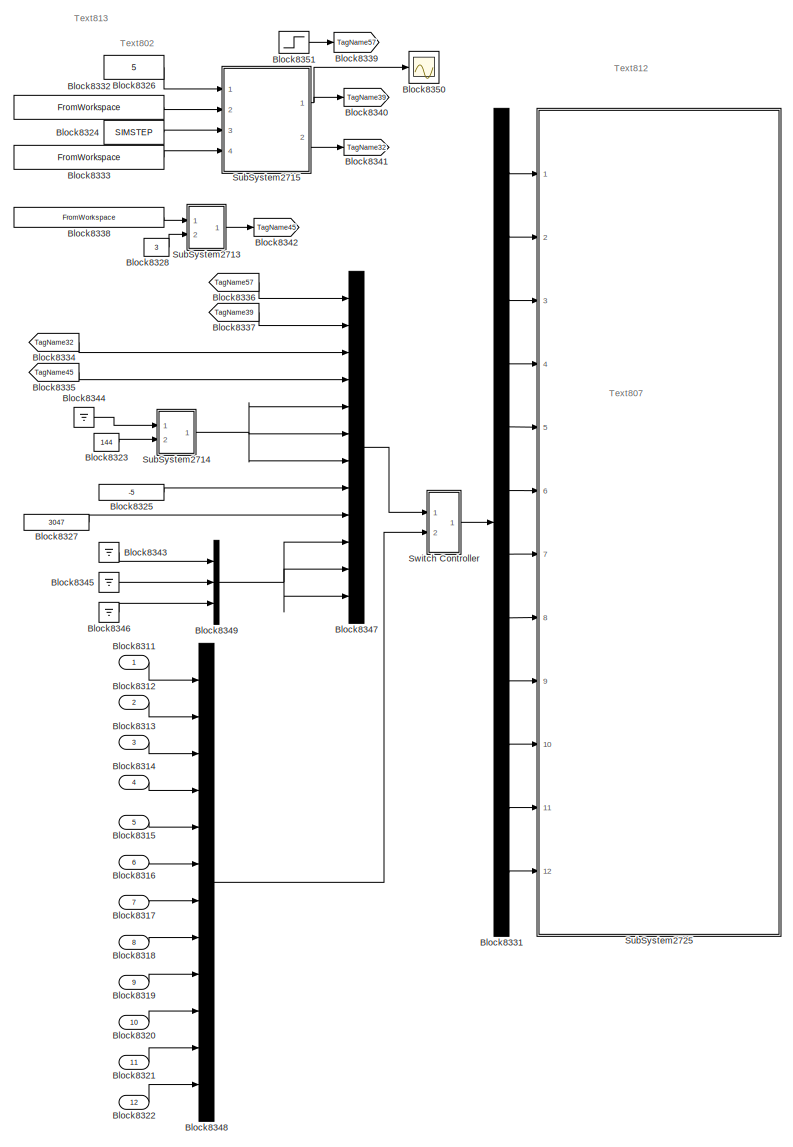
[diagram: root canvas - part 1/2, center side, full height]
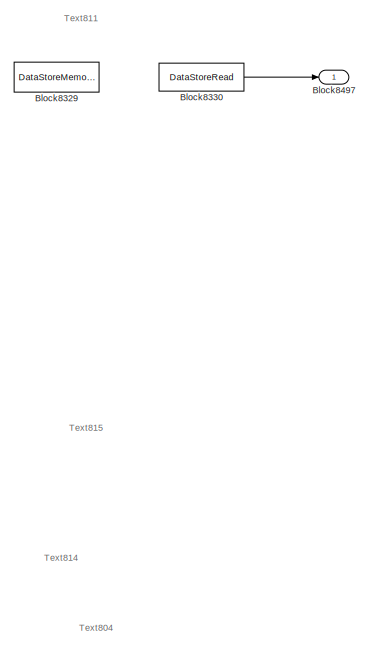
[diagram: root canvas - part 2/2, middle right region]
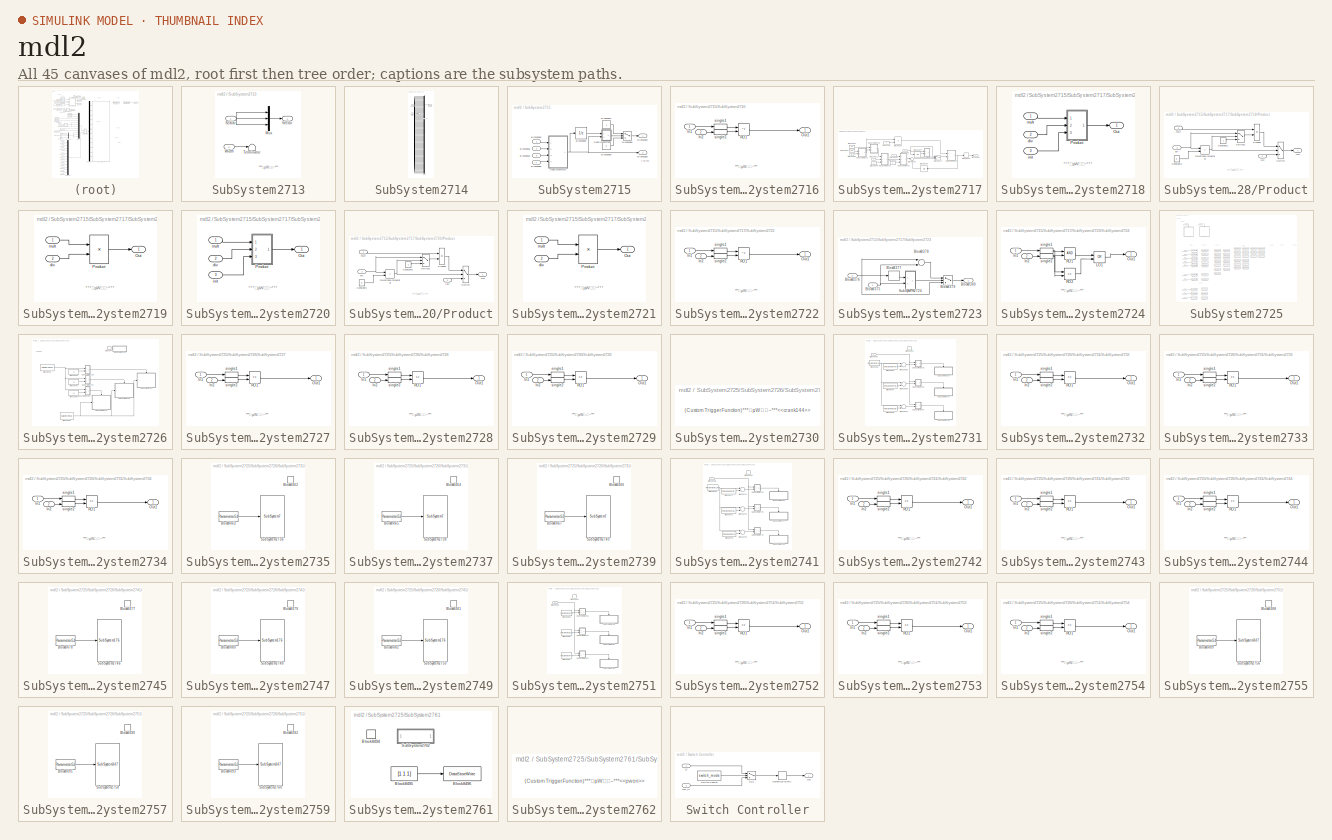
[diagram: thumbnail index - all 45 canvases of the model, root first then tree order]
MODEL mdl2
KIND model
CONFIG PreLoadFcn = run('<userpath><path>');\nload('scr_simdata_all.mat');\nload('scr_simdata.mat');
BLOCK [Inport] Block8311
  IconDisplay = Port number
  SID = 1
  SampleTime = SIMSTEP
  SamplingMode = Sample based
  SignalType = real
BLOCK [Inport] Block8312
  IconDisplay = Port number
  Port = 2
  SID = 2
  SampleTime = SIMSTEP
  SamplingMode = Sample based
  SignalType = real
BLOCK [Inport] Block8313
  IconDisplay = Port number
  Port = 3
  PortDimensions = 1
  SID = 3
  SamplingMode = Sample based
  SignalType = real
BLOCK [Inport] Block8314
  IconDisplay = Port number
  Port = 4
  PortDimensions = 3
  SID = 4
  SamplingMode = Sample based
  SignalType = real
BLOCK [Inport] Block8315
  IconDisplay = Port number
  Port = 5
  PortDimensions = 144
  SID = 5
  SamplingMode = Sample based
  SignalType = real
BLOCK [Inport] Block8316
  IconDisplay = Port number
  Port = 6
  PortDimensions = 144
  SID = 6
  SamplingMode = Sample based
  SignalType = real
BLOCK [Inport] Block8317
  IconDisplay = Port number
  Port = 7
  PortDimensions = 144
  SID = 7
  SamplingMode = Sample based
  SignalType = real
BLOCK [Inport] Block8318
  IconDisplay = Port number
  Port = 8
  PortDimensions = 1
  SID = 8
  SamplingMode = Sample based
  SignalType = real
BLOCK [Inport] Block8319
  IconDisplay = Port number
  Port = 9
  PortDimensions = 1
  SID = 9
  SamplingMode = Sample based
  SignalType = real
BLOCK [Inport] Block8320
  IconDisplay = Port number
  Port = 10
  PortDimensions = 3
  SID = 10
  SamplingMode = Sample based
  SignalType = real
BLOCK [Inport] Block8321
  IconDisplay = Port number
  Port = 11
  PortDimensions = 3
  SID = 11
  SamplingMode = Sample based
  SignalType = real
BLOCK [Inport] Block8322
  IconDisplay = Port number
  Port = 12
  PortDimensions = 3
  SID = 12
  SamplingMode = Sample based
  SignalType = real
BLOCK [Constant] Block8323
  OutDataTypeStr = double
  SID = 13
  SampleTime = -1
  UserData = DataTag1
  UserDataPersistent = on
  Value = 144
BLOCK [Constant] Block8324
  OutDataTypeStr = double
  SID = 14
  SampleTime = -1
  UserData = DataTag2
  UserDataPersistent = on
  Value = SIMSTEP
BLOCK [Constant] Block8325
  OutDataTypeStr = double
  SID = 15
  SampleTime = SIMSTEP
  UserData = DataTag3
  UserDataPersistent = on
  Value = -5
BLOCK [Constant] Block8326
  OutDataTypeStr = double
  SID = 16
  SampleTime = -1
  UserData = DataTag4
  UserDataPersistent = on
  Value = 5
BLOCK [Constant] Block8327
  OutDataTypeStr = double
  SID = 17
  SampleTime = -1
  UserData = DataTag5
  UserDataPersistent = on
  Value = 3047
BLOCK [Constant] Block8328
  OutDataTypeStr = double
  SID = 18
  SampleTime = -1
  UserData = DataTag6
  UserDataPersistent = on
  Value = 3
BLOCK [DataStoreMemory] Block8329
  DataStoreName = DSM87
  InitialValue = [0 0 0]
  OutDataTypeStr = double
  SID = 19
BLOCK [DataStoreRead] Block8330
  DataStoreName = DSM87
  Ports = [0, 1]
  SID = 20
BLOCK [Demux] Block8331
  Outputs = 12
  Ports = [1, 12]
  SID = 21
BLOCK [FromWorkspace] Block8332
  SID = 22
  SampleTime = SIMSTEP
  VariableName = [TIME,SimData19]
  ZeroCross = on
BLOCK [FromWorkspace] Block8333
  Interpolate = off
  OutputAfterFinalValue = Holding final value
  SID = 23
  SampleTime = SIMSTEP
  VariableName = [TIME,SimData20]
  ZeroCross = on
BLOCK [From] Block8334
  CloseFcn = tagdialog Close
  GotoTag = TagName32
  SID = 24
BLOCK [From] Block8335
  CloseFcn = tagdialog Close
  GotoTag = TagName45
  SID = 25
BLOCK [From] Block8336
  CloseFcn = tagdialog Close
  GotoTag = TagName57
  SID = 26
BLOCK [From] Block8337
  CloseFcn = tagdialog Close
  GotoTag = TagName39
  SID = 27
BLOCK [FromWorkspace] Block8338
  Interpolate = off
  OutputAfterFinalValue = Holding final value
  SID = 28
  SampleTime = SIMSTEP
  UserData = DataTag7
  UserDataPersistent = on
  VariableName = [ TIME , SimData21 ]
BLOCK [Goto] Block8339
  GotoTag = TagName57
  SID = 29
BLOCK [Goto] Block8340
  GotoTag = TagName39
  SID = 30
BLOCK [Goto] Block8341
  GotoTag = TagName32
  SID = 31
BLOCK [Goto] Block8342
  GotoTag = TagName45
  SID = 32
BLOCK [Ground] Block8343
  SID = 33
BLOCK [Ground] Block8344
  SID = 34
BLOCK [Ground] Block8345
  SID = 35
BLOCK [Ground] Block8346
  SID = 36
BLOCK [Mux] Block8347
  DisplayOption = bar
  Inputs = 12
  Ports = [12, 1]
  SID = 37
BLOCK [Mux] Block8348
  DisplayOption = bar
  Inputs = 12
  Ports = [12, 1]
  SID = 38
BLOCK [Mux] Block8349
  DisplayOption = bar
  Inputs = 3
  Ports = [3, 1]
  SID = 39
BLOCK [Scope] Block8350
  DataFormat = StructureWithTime
  Floating = off
  LimitDataPoints = off
  NumInputPorts = 1
  Ports = [1]
  SID = 40
  SampleTime = 0
  ShowLegends = off
  YMax = 1
  YMin = 0
BLOCK [Step] Block8351
  SID = 41
  SampleTime = SIMSTEP
  Time = SIMSTEP
BLOCK [Outport] Block8497
  IconDisplay = Port number
  SID = 384
  SamplingMode = Sample based
  SignalType = real
BLOCK [SubSystem] SubSystem2713
  FunctionWithSeparateData = off
  MaskHideContents = off
  MinAlgLoopOccurrences = off
  Opaque = off
  Ports = [2, 1]
  PropExecContextOutsideSubsystem = off
  RTWSystemCode = Auto
  RequestExecContextInheritance = off
  SID = 42
  UserData = DataTag8
  UserDataPersistent = on
BLOCK [Mux] SubSystem2713/Mux
  DisplayOption = bar
  Inputs = 3
  Ports = [3, 1]
  SID = 45
BLOCK [Inport] SubSystem2713/Scalar
  IconDisplay = Port number
  SID = 43
BLOCK [Terminator] SubSystem2713/Terminator
  SID = 46
BLOCK [Outport] SubSystem2713/Vector
  IconDisplay = Port number
  SID = 47
BLOCK [Inport] SubSystem2713/Width
  IconDisplay = Port number
  Port = 2
  SID = 44
BLOCK [SubSystem] SubSystem2714
  FunctionWithSeparateData = off
  MaskHideContents = off
  MinAlgLoopOccurrences = off
  Opaque = off
  Ports = [2, 1]
  PropExecContextOutsideSubsystem = off
  RTWSystemCode = Auto
  RequestExecContextInheritance = off
  SID = 48
  UserData = DataTag9
  UserDataPersistent = on
BLOCK [Mux] SubSystem2714/Mux
  DisplayOption = bar
  Inputs = 144
  Ports = [144, 1]
  SID = 51
BLOCK [Inport] SubSystem2714/Scalar
  IconDisplay = Port number
  SID = 49
BLOCK [Terminator] SubSystem2714/Terminator
  SID = 52
BLOCK [Outport] SubSystem2714/Vector
  IconDisplay = Port number
  SID = 53
BLOCK [Inport] SubSystem2714/Width
  IconDisplay = Port number
  Port = 2
  SID = 50
BLOCK [SubSystem] SubSystem2715
  FunctionWithSeparateData = off
  MaskHideContents = off
  MinAlgLoopOccurrences = off
  Opaque = off
  Ports = [4, 2]
  PropExecContextOutsideSubsystem = off
  RTWSystemCode = Auto
  RequestExecContextInheritance = off
  SID = 54
BLOCK [Inport] SubSystem2715/Block8352
  IconDisplay = Port number
  SID = 55
BLOCK [Inport] SubSystem2715/Block8353
  IconDisplay = Port number
  Port = 2
  SID = 56
BLOCK [Inport] SubSystem2715/Block8354
  IconDisplay = Port number
  Port = 3
  SID = 57
BLOCK [Inport] SubSystem2715/Block8355
  IconDisplay = Port number
  Port = 4
  SID = 58
BLOCK [Constant] SubSystem2715/Block8356
  OutDataTypeStr = double
  SID = 59
  SampleTime = -1
  UserData = DataTag10
  UserDataPersistent = on
  Value = 0
BLOCK [Constant] SubSystem2715/Block8357
  OutDataTypeStr = double
  SID = 60
  SampleTime = -1
  UserData = DataTag11
  UserDataPersistent = on
BLOCK [Switch] SubSystem2715/Block8358
  RndMeth = Zero
  SID = 61
  Threshold = 0.5
BLOCK [UnitDelay] SubSystem2715/Block8359
  SID = 62
  SampleTime = -1
  UserData = DataTag12
  UserDataPersistent = on
BLOCK [Outport] SubSystem2715/Block8382
  IconDisplay = Port number
  SID = 152
BLOCK [Outport] SubSystem2715/Block8383
  IconDisplay = Port number
  Port = 2
  SID = 153
BLOCK [SubSystem] SubSystem2715/SubSystem2716
  FunctionWithSeparateData = off
  MaskHideContents = off
  MinAlgLoopOccurrences = off
  Opaque = off
  Ports = [2, 1]
  PropExecContextOutsideSubsystem = off
  RTWSystemCode = Auto
  RequestExecContextInheritance = off
  SID = 63
BLOCK [Inport] SubSystem2715/SubSystem2716/In1
  IconDisplay = Port number
  SID = 64
  SamplingMode = Sample based
  SignalType = real
BLOCK [Inport] SubSystem2715/SubSystem2716/In2
  IconDisplay = Port number
  Port = 2
  SID = 65
  SamplingMode = Sample based
  SignalType = real
BLOCK [Outport] SubSystem2715/SubSystem2716/Out1
  IconDisplay = Port number
  SID = 69
  SamplingMode = Sample based
  SignalType = real
BLOCK [RelationalOperator] SubSystem2715/SubSystem2716/RO1
  Operator = ~=
  Ports = [2, 1]
  SID = 66
BLOCK [DataTypeConversion] SubSystem2715/SubSystem2716/single1
  OutDataTypeStr = single
  SID = 67
BLOCK [DataTypeConversion] SubSystem2715/SubSystem2716/single2
  OutDataTypeStr = single
  SID = 68
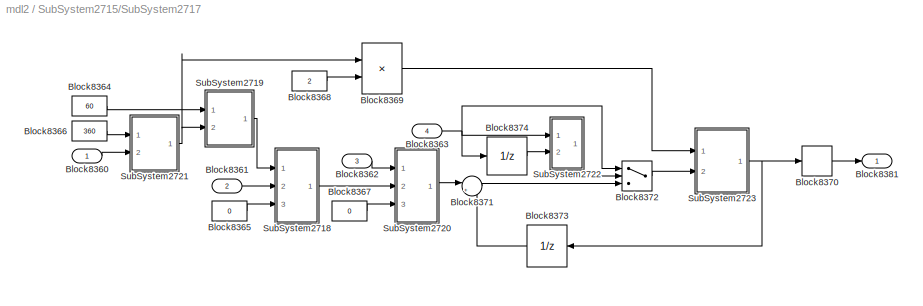
BLOCK [SubSystem] SubSystem2715/SubSystem2717
  FunctionWithSeparateData = off
  MaskHideContents = off
  MinAlgLoopOccurrences = off
  Opaque = off
  Ports = [4, 1]
  PropExecContextOutsideSubsystem = off
  RTWSystemCode = Auto
  RequestExecContextInheritance = off
  SID = 70
BLOCK [Inport] SubSystem2715/SubSystem2717/Block8360
  IconDisplay = Port number
  SID = 71
BLOCK [Inport] SubSystem2715/SubSystem2717/Block8361
  IconDisplay = Port number
  Port = 2
  SID = 72
  SamplingMode = Sample based
  SignalType = real
BLOCK [Inport] SubSystem2715/SubSystem2717/Block8362
  IconDisplay = Port number
  Port = 3
  SID = 73
  SamplingMode = Sample based
  SignalType = real
BLOCK [Inport] SubSystem2715/SubSystem2717/Block8363
  IconDisplay = Port number
  Port = 4
  SID = 74
  SamplingMode = Sample based
  SignalType = real
BLOCK [Constant] SubSystem2715/SubSystem2717/Block8364
  OutDataTypeStr = double
  SID = 75
  SampleTime = -1
  UserData = DataTag13
  UserDataPersistent = on
  Value = 60
BLOCK [Constant] SubSystem2715/SubSystem2717/Block8365
  OutDataTypeStr = double
  SID = 76
  SampleTime = -1
  UserData = DataTag14
  UserDataPersistent = on
  Value = 0
BLOCK [Constant] SubSystem2715/SubSystem2717/Block8366
  OutDataTypeStr = double
  SID = 77
  SampleTime = -1
  UserData = DataTag15
  UserDataPersistent = on
  Value = 360
BLOCK [Constant] SubSystem2715/SubSystem2717/Block8367
  OutDataTypeStr = double
  SID = 78
  SampleTime = -1
  UserData = DataTag16
  UserDataPersistent = on
  Value = 0
BLOCK [Constant] SubSystem2715/SubSystem2717/Block8368
  OutDataTypeStr = double
  SID = 79
  SampleTime = -1
  UserData = DataTag17
  UserDataPersistent = on
  Value = 2
BLOCK [Product] SubSystem2715/SubSystem2717/Block8369
  Inputs = **
  Ports = [2, 1]
  SID = 80
BLOCK [Rounding] SubSystem2715/SubSystem2717/Block8370
  Operator = round
  SID = 81
BLOCK [Sum] SubSystem2715/SubSystem2717/Block8371
  IconShape = round
  Inputs = |++
  OutDataTypeStr = double
  Ports = [2, 1]
  RndMeth = Zero
  SID = 82
BLOCK [Switch] SubSystem2715/SubSystem2717/Block8372
  RndMeth = Zero
  SID = 83
  Threshold = 0.5
BLOCK [UnitDelay] SubSystem2715/SubSystem2717/Block8373
  SID = 84
  SampleTime = -1
  UserData = DataTag18
  UserDataPersistent = on
BLOCK [UnitDelay] SubSystem2715/SubSystem2717/Block8374
  SID = 85
  SampleTime = -1
  UserData = DataTag19
  UserDataPersistent = on
BLOCK [Outport] SubSystem2715/SubSystem2717/Block8381
  IconDisplay = Port number
  SID = 151
  SamplingMode = Sample based
  SignalType = real
BLOCK [SubSystem] SubSystem2715/SubSystem2717/SubSystem2718
  FunctionWithSeparateData = off
  MaskHideContents = off
  MinAlgLoopOccurrences = off
  Opaque = off
  OpenFcn = warndlg('ÏXÖ~!');
  Ports = [3, 1]
  PropExecContextOutsideSubsystem = off
  RTWSystemCode = Auto
  RequestExecContextInheritance = off
  SID = 86
  TreatAsAtomicUnit = on
  UserData = DataTag20
  UserDataPersistent = on
BLOCK [Outport] SubSystem2715/SubSystem2717/SubSystem2718/Out
  IconDisplay = Port number
  SID = 101
BLOCK [SubSystem] SubSystem2715/SubSystem2717/SubSystem2718/Product
  FunctionWithSeparateData = off
  MaskHideContents = off
  MinAlgLoopOccurrences = off
  Opaque = off
  Ports = [3, 1]
  PropExecContextOutsideSubsystem = off
  RTWSystemCode = Inline
  RequestExecContextInheritance = off
  SID = 90
  TreatAsAtomicUnit = on
BLOCK [Constant] SubSystem2715/SubSystem2717/SubSystem2718/Product/Constant1
  OutDataTypeStr = Inherit: Inherit via back propagation
  SID = 94
BLOCK [Constant] SubSystem2715/SubSystem2717/SubSystem2718/Product/Constant2
  OutDataTypeStr = Inherit: Inherit via back propagation
  SID = 95
  Value = 0
BLOCK [Outport] SubSystem2715/SubSystem2717/SubSystem2718/Product/Out
  IconDisplay = Port number
  SID = 100
BLOCK [Product] SubSystem2715/SubSystem2717/SubSystem2718/Product/Product
  Inputs = */
  Ports = [2, 1]
  SID = 96
BLOCK [RelationalOperator] SubSystem2715/SubSystem2717/SubSystem2718/Product/Relational\nOperator
  Operator = ~=
  Ports = [2, 1]
  SID = 97
BLOCK [Switch] SubSystem2715/SubSystem2717/SubSystem2718/Product/Switch
  SID = 98
  Threshold = 0.5
BLOCK [Switch] SubSystem2715/SubSystem2717/SubSystem2718/Product/Switch1
  SID = 99
  Threshold = 0.5
BLOCK [Inport] SubSystem2715/SubSystem2717/SubSystem2718/Product/div
  IconDisplay = Port number
  Port = 2
  SID = 92
BLOCK [Inport] SubSystem2715/SubSystem2717/SubSystem2718/Product/init
  IconDisplay = Port number
  Port = 3
  SID = 93
BLOCK [Inport] SubSystem2715/SubSystem2717/SubSystem2718/Product/mult
  IconDisplay = Port number
  SID = 91
BLOCK [Inport] SubSystem2715/SubSystem2717/SubSystem2718/div
  IconDisplay = Port number
  Port = 2
  SID = 88
BLOCK [Inport] SubSystem2715/SubSystem2717/SubSystem2718/init
  IconDisplay = Port number
  Port = 3
  SID = 89
BLOCK [Inport] SubSystem2715/SubSystem2717/SubSystem2718/mult
  IconDisplay = Port number
  SID = 87
BLOCK [SubSystem] SubSystem2715/SubSystem2717/SubSystem2719
  FunctionWithSeparateData = off
  MaskHideContents = off
  MinAlgLoopOccurrences = off
  Opaque = off
  OpenFcn = warndlg('ÏXÖ~!');
  Ports = [2, 1]
  PropExecContextOutsideSubsystem = off
  RTWSystemCode = Auto
  RequestExecContextInheritance = off
  SID = 102
  TreatAsAtomicUnit = on
  UserData = DataTag21
  UserDataPersistent = on
BLOCK [Outport] SubSystem2715/SubSystem2717/SubSystem2719/Out
  IconDisplay = Port number
  SID = 106
BLOCK [Product] SubSystem2715/SubSystem2717/SubSystem2719/Product
  Inputs = */
  Ports = [2, 1]
  SID = 105
BLOCK [Inport] SubSystem2715/SubSystem2717/SubSystem2719/div
  IconDisplay = Port number
  Port = 2
  SID = 104
BLOCK [Inport] SubSystem2715/SubSystem2717/SubSystem2719/mult
  IconDisplay = Port number
  SID = 103
BLOCK [SubSystem] SubSystem2715/SubSystem2717/SubSystem2720
  FunctionWithSeparateData = off
  MaskHideContents = off
  MinAlgLoopOccurrences = off
  Opaque = off
  OpenFcn = warndlg('ÏXÖ~!');
  Ports = [3, 1]
  PropExecContextOutsideSubsystem = off
  RTWSystemCode = Auto
  RequestExecContextInheritance = off
  SID = 107
  TreatAsAtomicUnit = on
  UserData = DataTag22
  UserDataPersistent = on
BLOCK [Outport] SubSystem2715/SubSystem2717/SubSystem2720/Out
  IconDisplay = Port number
  SID = 122
BLOCK [SubSystem] SubSystem2715/SubSystem2717/SubSystem2720/Product
  FunctionWithSeparateData = off
  MaskHideContents = off
  MinAlgLoopOccurrences = off
  Opaque = off
  Ports = [3, 1]
  PropExecContextOutsideSubsystem = off
  RTWSystemCode = Inline
  RequestExecContextInheritance = off
  SID = 111
  TreatAsAtomicUnit = on
BLOCK [Constant] SubSystem2715/SubSystem2717/SubSystem2720/Product/Constant1
  OutDataTypeStr = Inherit: Inherit via back propagation
  SID = 115
BLOCK [Constant] SubSystem2715/SubSystem2717/SubSystem2720/Product/Constant2
  OutDataTypeStr = Inherit: Inherit via back propagation
  SID = 116
  Value = 0
BLOCK [Outport] SubSystem2715/SubSystem2717/SubSystem2720/Product/Out
  IconDisplay = Port number
  SID = 121
BLOCK [Product] SubSystem2715/SubSystem2717/SubSystem2720/Product/Product
  Inputs = */
  Ports = [2, 1]
  SID = 117
BLOCK [RelationalOperator] SubSystem2715/SubSystem2717/SubSystem2720/Product/Relational\nOperator
  Operator = ~=
  Ports = [2, 1]
  SID = 118
BLOCK [Switch] SubSystem2715/SubSystem2717/SubSystem2720/Product/Switch
  SID = 119
  Threshold = 0.5
BLOCK [Switch] SubSystem2715/SubSystem2717/SubSystem2720/Product/Switch1
  SID = 120
  Threshold = 0.5
BLOCK [Inport] SubSystem2715/SubSystem2717/SubSystem2720/Product/div
  IconDisplay = Port number
  Port = 2
  SID = 113
BLOCK [Inport] SubSystem2715/SubSystem2717/SubSystem2720/Product/init
  IconDisplay = Port number
  Port = 3
  SID = 114
BLOCK [Inport] SubSystem2715/SubSystem2717/SubSystem2720/Product/mult
  IconDisplay = Port number
  SID = 112
BLOCK [Inport] SubSystem2715/SubSystem2717/SubSystem2720/div
  IconDisplay = Port number
  Port = 2
  SID = 109
BLOCK [Inport] SubSystem2715/SubSystem2717/SubSystem2720/init
  IconDisplay = Port number
  Port = 3
  SID = 110
BLOCK [Inport] SubSystem2715/SubSystem2717/SubSystem2720/mult
  IconDisplay = Port number
  SID = 108
BLOCK [SubSystem] SubSystem2715/SubSystem2717/SubSystem2721
  FunctionWithSeparateData = off
  MaskHideContents = off
  MinAlgLoopOccurrences = off
  Opaque = off
  OpenFcn = warndlg('ÏXÖ~!');
  Ports = [2, 1]
  PropExecContextOutsideSubsystem = off
  RTWSystemCode = Auto
  RequestExecContextInheritance = off
  SID = 123
  TreatAsAtomicUnit = on
  UserData = DataTag23
  UserDataPersistent = on
BLOCK [Outport] SubSystem2715/SubSystem2717/SubSystem2721/Out
  IconDisplay = Port number
  SID = 127
BLOCK [Product] SubSystem2715/SubSystem2717/SubSystem2721/Product
  Inputs = */
  Ports = [2, 1]
  SID = 126
BLOCK [Inport] SubSystem2715/SubSystem2717/SubSystem2721/div
  IconDisplay = Port number
  Port = 2
  SID = 125
BLOCK [Inport] SubSystem2715/SubSystem2717/SubSystem2721/mult
  IconDisplay = Port number
  SID = 124
BLOCK [SubSystem] SubSystem2715/SubSystem2717/SubSystem2722
  FunctionWithSeparateData = off
  MaskHideContents = off
  MinAlgLoopOccurrences = off
  Opaque = off
  Ports = [2, 1]
  PropExecContextOutsideSubsystem = off
  RTWSystemCode = Auto
  RequestExecContextInheritance = off
  SID = 128
BLOCK [Inport] SubSystem2715/SubSystem2717/SubSystem2722/In1
  IconDisplay = Port number
  SID = 129
  SamplingMode = Sample based
  SignalType = real
BLOCK [Inport] SubSystem2715/SubSystem2717/SubSystem2722/In2
  IconDisplay = Port number
  Port = 2
  SID = 130
  SamplingMode = Sample based
  SignalType = real
BLOCK [Outport] SubSystem2715/SubSystem2717/SubSystem2722/Out1
  IconDisplay = Port number
  SID = 134
  SamplingMode = Sample based
  SignalType = real
BLOCK [RelationalOperator] SubSystem2715/SubSystem2717/SubSystem2722/RO1
  Operator = ~=
  Ports = [2, 1]
  SID = 131
BLOCK [DataTypeConversion] SubSystem2715/SubSystem2717/SubSystem2722/single1
  OutDataTypeStr = single
  SID = 132
BLOCK [DataTypeConversion] SubSystem2715/SubSystem2717/SubSystem2722/single2
  OutDataTypeStr = single
  SID = 133
BLOCK [SubSystem] SubSystem2715/SubSystem2717/SubSystem2723
  FunctionWithSeparateData = off
  MaskHideContents = off
  MinAlgLoopOccurrences = off
  Opaque = off
  Ports = [2, 1]
  PropExecContextOutsideSubsystem = off
  RTWSystemCode = Inline
  RequestExecContextInheritance = off
  SID = 135
BLOCK [Inport] SubSystem2715/SubSystem2717/SubSystem2723/Block8375
  IconDisplay = Port number
  SID = 136
  SamplingMode = Sample based
  SignalType = real
BLOCK [Inport] SubSystem2715/SubSystem2717/SubSystem2723/Block8376
  IconDisplay = Port number
  Port = 2
  SID = 137
  SamplingMode = Sample based
  SignalType = real
BLOCK [Rounding] SubSystem2715/SubSystem2717/SubSystem2723/Block8377
  Operator = round
  SID = 138
BLOCK [Sum] SubSystem2715/SubSystem2717/SubSystem2723/Block8378
  Inputs = +-
  OutDataTypeStr = double
  Ports = [2, 1]
  RndMeth = Zero
  SID = 139
BLOCK [Switch] SubSystem2715/SubSystem2717/SubSystem2723/Block8379
  RndMeth = Zero
  SID = 140
  Threshold = 0.5
BLOCK [Outport] SubSystem2715/SubSystem2717/SubSystem2723/Block8380
  IconDisplay = Port number
  SID = 150
  SamplingMode = Sample based
  SignalType = real
BLOCK [SubSystem] SubSystem2715/SubSystem2717/SubSystem2723/SubSystem2724
  FunctionWithSeparateData = off
  MaskHideContents = off
  MinAlgLoopOccurrences = off
  Opaque = off
  Ports = [2, 1]
  PropExecContextOutsideSubsystem = off
  RTWSystemCode = Auto
  RequestExecContextInheritance = off
  SID = 141
BLOCK [Inport] SubSystem2715/SubSystem2717/SubSystem2723/SubSystem2724/In1
  IconDisplay = Port number
  SID = 142
  SamplingMode = Sample based
  SignalType = real
BLOCK [Inport] SubSystem2715/SubSystem2717/SubSystem2723/SubSystem2724/In2
  IconDisplay = Port number
  Port = 2
  SID = 143
  SamplingMode = Sample based
  SignalType = real
BLOCK [Logic] SubSystem2715/SubSystem2717/SubSystem2723/SubSystem2724/LO1
  Operator = OR
  Ports = [2, 1]
  SID = 144
BLOCK [Outport] SubSystem2715/SubSystem2717/SubSystem2723/SubSystem2724/Out1
  IconDisplay = Port number
  SID = 149
  SamplingMode = Sample based
  SignalType = real
BLOCK [RelationalOperator] SubSystem2715/SubSystem2717/SubSystem2723/SubSystem2724/RO1
  Ports = [2, 1]
  SID = 145
BLOCK [RelationalOperator] SubSystem2715/SubSystem2717/SubSystem2723/SubSystem2724/RO2
  Operator = ==
  Ports = [2, 1]
  SID = 146
BLOCK [DataTypeConversion] SubSystem2715/SubSystem2717/SubSystem2723/SubSystem2724/single1
  OutDataTypeStr = single
  SID = 147
BLOCK [DataTypeConversion] SubSystem2715/SubSystem2717/SubSystem2723/SubSystem2724/single2
  OutDataTypeStr = single
  SID = 148
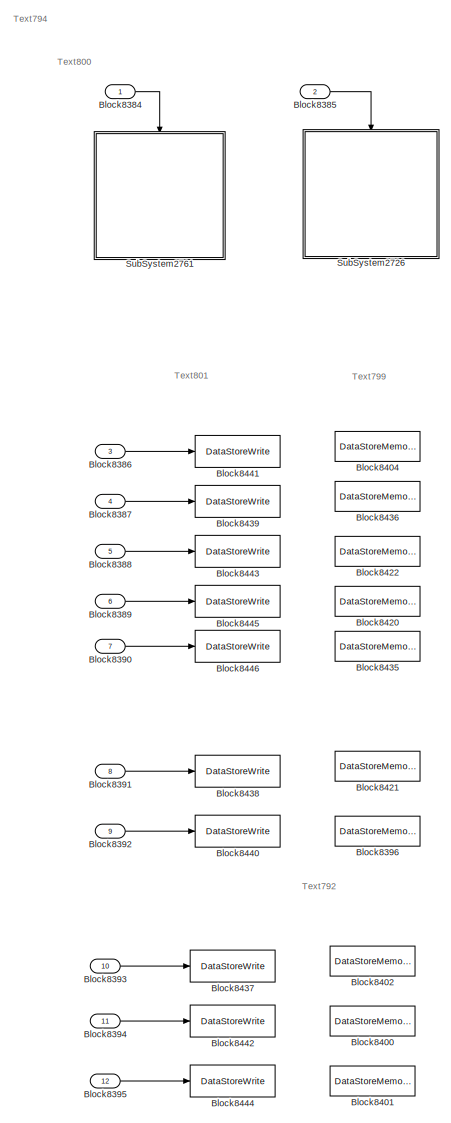
[diagram: SubSystem2725 - part 1/2, left side, full height]
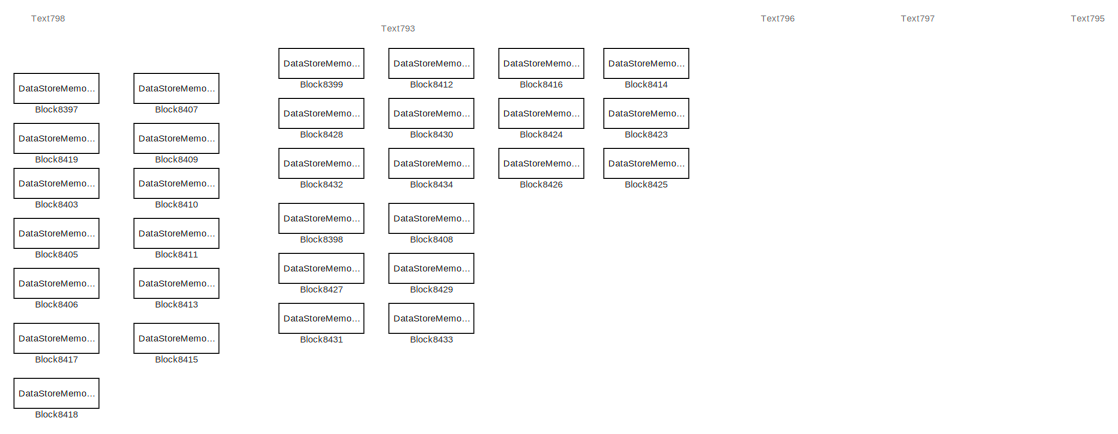
[diagram: SubSystem2725 - part 2/2, central region]
BLOCK [SubSystem] SubSystem2725
  FunctionWithSeparateData = off
  MaskHideContents = off
  MinAlgLoopOccurrences = off
  Opaque = off
  Ports = [12]
  PropExecContextOutsideSubsystem = off
  RTWSystemCode = Auto
  RequestExecContextInheritance = off
  SID = 154
BLOCK [Inport] SubSystem2725/Block8384
  IconDisplay = Port number
  SID = 155
  SamplingMode = Sample based
  SignalType = real
BLOCK [Inport] SubSystem2725/Block8385
  IconDisplay = Port number
  Port = 2
  SID = 156
  SamplingMode = Sample based
  SignalType = real
BLOCK [Inport] SubSystem2725/Block8386
  IconDisplay = Port number
  Port = 3
  SID = 157
  SamplingMode = Sample based
  SignalType = real
BLOCK [Inport] SubSystem2725/Block8387
  IconDisplay = Port number
  Port = 4
  SID = 158
  SamplingMode = Sample based
  SignalType = real
BLOCK [Inport] SubSystem2725/Block8388
  IconDisplay = Port number
  Port = 5
  SID = 159
  SamplingMode = Sample based
  SignalType = real
BLOCK [Inport] SubSystem2725/Block8389
  IconDisplay = Port number
  Port = 6
  SID = 160
  SamplingMode = Sample based
  SignalType = real
BLOCK [Inport] SubSystem2725/Block8390
  IconDisplay = Port number
  Port = 7
  SID = 161
  SamplingMode = Sample based
  SignalType = real
BLOCK [Inport] SubSystem2725/Block8391
  IconDisplay = Port number
  Port = 8
  SID = 162
  SamplingMode = Sample based
  SignalType = real
BLOCK [Inport] SubSystem2725/Block8392
  IconDisplay = Port number
  Port = 9
  SID = 163
  SamplingMode = Sample based
  SignalType = real
BLOCK [Inport] SubSystem2725/Block8393
  IconDisplay = Port number
  Port = 10
  SID = 164
  SamplingMode = Sample based
  SignalType = real
BLOCK [Inport] SubSystem2725/Block8394
  IconDisplay = Port number
  Port = 11
  SID = 165
  SamplingMode = Sample based
  SignalType = real
BLOCK [Inport] SubSystem2725/Block8395
  IconDisplay = Port number
  Port = 12
  SID = 166
  SamplingMode = Sample based
  SignalType = real
BLOCK [DataStoreMemory] SubSystem2725/Block8396
  DataStoreName = DSM35
  OutDataTypeStr = double
  SID = 167
BLOCK [DataStoreMemory] SubSystem2725/Block8397
  DataStoreName = DSM365
  OutDataTypeStr = double
  SID = 168
BLOCK [DataStoreMemory] SubSystem2725/Block8398
  DataStoreName = DSM366
  InitialValue = [0 0 0 0 0 0 0 0 0 0 0 0 0 0 0 0 0 0 0 0 0 0 0 0 0 0 0 0 0 0 0 0 0 0 0 0 0 0 0 0 0 0 0 0 0 0 0 0 0 0 0 0 0 0 0 0 0 0 0 0 0 0 0 0 0 0 0 0 0 0 0 0 0 0 0 0 0 0 0 0 0 0 0 0 0 0 0 0 0 0 0 0 0 0 0 0 0 0 0 0 0 0 0 0 0 0 0 0 0 0 0 0 0 0 0 0 0 0 0 0 0 0 0 0 0 0 0 0]  <repeated x12 — deduplicated; at blocks: Block8398, Block8399, Block8414, Block8416, Block8423, Block8424, Block8425, Block8426, Block8427, Block8428, Block8431, Block8432>
  OutDataTypeStr = double
  SID = 169
BLOCK [DataStoreMemory] SubSystem2725/Block8399
  DataStoreName = DSM367
  OutDataTypeStr = double
  SID = 170
BLOCK [DataStoreMemory] SubSystem2725/Block8400
  DataStoreName = DSM1
  InitialValue = [0 0 0]
  OutDataTypeStr = double
  SID = 171
BLOCK [DataStoreMemory] SubSystem2725/Block8401
  DataStoreName = DSM3
  InitialValue = [0 0 0]
  OutDataTypeStr = double
  SID = 172
BLOCK [DataStoreMemory] SubSystem2725/Block8402
  DataStoreName = DSM5
  InitialValue = [0 0 0]
  OutDataTypeStr = double
  SID = 173
BLOCK [DataStoreMemory] SubSystem2725/Block8403
  DataStoreName = DSM371
  InitialValue = [0 0 0]
  OutDataTypeStr = double
  SID = 174
BLOCK [DataStoreMemory] SubSystem2725/Block8404
  DataStoreName = DSM43
  OutDataTypeStr = double
  SID = 175
BLOCK [DataStoreMemory] SubSystem2725/Block8405
  DataStoreName = DSM373
  InitialValue = [0 0 0]
  OutDataTypeStr = double
  SID = 176
BLOCK [DataStoreMemory] SubSystem2725/Block8406
  DataStoreName = DSM374
  InitialValue = [0 0 0]
  OutDataTypeStr = double
  SID = 177
BLOCK [DataStoreMemory] SubSystem2725/Block8407
  DataStoreName = DSM375
  InitialValue = [0 0 0]
  OutDataTypeStr = double
  SID = 178
BLOCK [DataStoreMemory] SubSystem2725/Block8408
  DataStoreName = DSM376
  InitialValue = [0 0 0 0 0 0 0 0 0 0 0 0 0 0 0 0]
  OutDataTypeStr = double
  SID = 179
BLOCK [DataStoreMemory] SubSystem2725/Block8409
  DataStoreName = DSM377
  InitialValue = [0 0 0]
  OutDataTypeStr = double
  SID = 180
BLOCK [DataStoreMemory] SubSystem2725/Block8410
  DataStoreName = DSM378
  InitialValue = [0 0 0]
  OutDataTypeStr = double
  SID = 181
BLOCK [DataStoreMemory] SubSystem2725/Block8411
  DataStoreName = DSM379
  InitialValue = [0 0 0]
  OutDataTypeStr = double
  SID = 182
BLOCK [DataStoreMemory] SubSystem2725/Block8412
  DataStoreName = DSM380
  InitialValue = [0 0 0 0 0 0 0 0 0 0 0 0 0 0 0 0]
  OutDataTypeStr = double
  SID = 183
BLOCK [DataStoreMemory] SubSystem2725/Block8413
  DataStoreName = DSM381
  InitialValue = [0 0 0]
  OutDataTypeStr = double
  SID = 184
BLOCK [DataStoreMemory] SubSystem2725/Block8414
  DataStoreName = DSM382
  OutDataTypeStr = double
  SID = 185
BLOCK [DataStoreMemory] SubSystem2725/Block8415
  DataStoreName = DSM383
  InitialValue = [0 0 0]
  OutDataTypeStr = double
  SID = 186
BLOCK [DataStoreMemory] SubSystem2725/Block8416
  DataStoreName = DSM384
  OutDataTypeStr = double
  SID = 187
BLOCK [DataStoreMemory] SubSystem2725/Block8417
  DataStoreName = DSM385
  InitialValue = [0 0 0]
  OutDataTypeStr = double
  SID = 188
BLOCK [DataStoreMemory] SubSystem2725/Block8418
  DataStoreName = DSM386
  InitialValue = [0 0 0]
  OutDataTypeStr = double
  SID = 189
BLOCK [DataStoreMemory] SubSystem2725/Block8419
  DataStoreName = DSM387
  InitialValue = [0 0 0]
  OutDataTypeStr = double
  SID = 190
BLOCK [DataStoreMemory] SubSystem2725/Block8420
  DataStoreName = DSM6
  InitialValue = [0 0 0 0 0 0 0 0 0 0 0 0 0 0 0 0 0 0 0 0 0 0 0 0 0 0 0 0 0 0 0 0 0 0 0 0 0 0 0 0 0 0 0 0 0 0 0 0 0 0 0 0 0 0 0 0 0 0 0 0 0 0 0 0 0 0 0 0 0 0 0 0 0 0 0 0 0 0 0 0 0 0 0 0 0 0 0 0 0 0 0 0 0 0 0 0 0 0 0 0 0 0 0 0 0 0 0 0 0 0 0 0 0 0 0 0 0 0 0 0 0 0 0 0 0 0 0 0 0 0 0 0 0 0 0 0 0 0 0 0 0 0 0 0]  <repeated x3 — deduplicated; at blocks: Block8420, Block8422, Block8435>
  OutDataTypeStr = double
  SID = 191
BLOCK [DataStoreMemory] SubSystem2725/Block8421
  DataStoreName = DSM50
  OutDataTypeStr = double
  SID = 192
BLOCK [DataStoreMemory] SubSystem2725/Block8422
  DataStoreName = DSM7
  OutDataTypeStr = double
  SID = 193
BLOCK [DataStoreMemory] SubSystem2725/Block8423
  DataStoreName = DSM391
  OutDataTypeStr = double
  SID = 194
BLOCK [DataStoreMemory] SubSystem2725/Block8424
  DataStoreName = DSM392
  OutDataTypeStr = double
  SID = 195
BLOCK [DataStoreMemory] SubSystem2725/Block8425
  DataStoreName = DSM393
  OutDataTypeStr = double
  SID = 196
BLOCK [DataStoreMemory] SubSystem2725/Block8426
  DataStoreName = DSM394
  OutDataTypeStr = double
  SID = 197
BLOCK [DataStoreMemory] SubSystem2725/Block8427
  DataStoreName = DSM395
  OutDataTypeStr = double
  SID = 198
BLOCK [DataStoreMemory] SubSystem2725/Block8428
  DataStoreName = DSM396
  OutDataTypeStr = double
  SID = 199
BLOCK [DataStoreMemory] SubSystem2725/Block8429
  DataStoreName = DSM397
  InitialValue = [0 0 0 0 0 0 0 0 0 0 0 0 0 0 0 0]
  OutDataTypeStr = double
  SID = 200
BLOCK [DataStoreMemory] SubSystem2725/Block8430
  DataStoreName = DSM398
  InitialValue = [0 0 0 0 0 0 0 0 0 0 0 0 0 0 0 0]
  OutDataTypeStr = double
  SID = 201
BLOCK [DataStoreMemory] SubSystem2725/Block8431
  DataStoreName = DSM399
  OutDataTypeStr = double
  SID = 202
BLOCK [DataStoreMemory] SubSystem2725/Block8432
  DataStoreName = DSM400
  OutDataTypeStr = double
  SID = 203
BLOCK [DataStoreMemory] SubSystem2725/Block8433
  DataStoreName = DSM401
  InitialValue = [0 0 0 0 0 0 0 0 0 0 0 0 0 0 0 0]
  OutDataTypeStr = double
  SID = 204
BLOCK [DataStoreMemory] SubSystem2725/Block8434
  DataStoreName = DSM402
  InitialValue = [0 0 0 0 0 0 0 0 0 0 0 0 0 0 0 0]
  OutDataTypeStr = double
  SID = 205
BLOCK [DataStoreMemory] SubSystem2725/Block8435
  DataStoreName = DSM19
  OutDataTypeStr = double
  SID = 206
BLOCK [DataStoreMemory] SubSystem2725/Block8436
  DataStoreName = DSM95
  InitialValue = [0 0 0]
  OutDataTypeStr = double
  SID = 207
BLOCK [DataStoreWrite] SubSystem2725/Block8437
  DataStoreName = DSM5
  Ports = [1]
  Priority = 1
  SID = 208
BLOCK [DataStoreWrite] SubSystem2725/Block8438
  DataStoreName = DSM50
  Ports = [1]
  Priority = 1
  SID = 209
BLOCK [DataStoreWrite] SubSystem2725/Block8439
  DataStoreName = DSM95
  Ports = [1]
  Priority = 1
  SID = 210
BLOCK [DataStoreWrite] SubSystem2725/Block8440
  DataStoreName = DSM35
  Ports = [1]
  Priority = 1
  SID = 211
BLOCK [DataStoreWrite] SubSystem2725/Block8441
  DataStoreName = DSM43
  Ports = [1]
  Priority = 1
  SID = 212
BLOCK [DataStoreWrite] SubSystem2725/Block8442
  DataStoreName = DSM1
  Ports = [1]
  Priority = 1
  SID = 213
BLOCK [DataStoreWrite] SubSystem2725/Block8443
  DataStoreName = DSM7
  Ports = [1]
  Priority = 1
  SID = 214
BLOCK [DataStoreWrite] SubSystem2725/Block8444
  DataStoreName = DSM3
  Ports = [1]
  Priority = 1
  SID = 215
BLOCK [DataStoreWrite] SubSystem2725/Block8445
  DataStoreName = DSM6
  Ports = [1]
  Priority = 1
  SID = 216
BLOCK [DataStoreWrite] SubSystem2725/Block8446
  DataStoreName = DSM19
  Ports = [1]
  Priority = 1
  SID = 217
BLOCK [SubSystem] SubSystem2725/SubSystem2726
  AttributesFormatString = Attribute2234
  FunctionWithSeparateData = off
  MaskHideContents = off
  MinAlgLoopOccurrences = off
  Opaque = off
  Ports = [0, 0, 0, 1]
  Priority = 3
  PropExecContextOutsideSubsystem = off
  RTWFcnNameOpts = Use subsystem name
  RTWSystemCode = Nonreusable function
  RequestExecContextInheritance = off
  SID = 218
  TreatAsAtomicUnit = on
BLOCK [TriggerPort] SubSystem2725/SubSystem2726/Block8447
  Ports = []
  SID = 219
  StatesWhenEnabling = held
BLOCK [Constant] SubSystem2725/SubSystem2726/Block8448
  OutDataTypeStr = double
  SID = 220
  SampleTime = -1
  UserData = DataTag24
  UserDataPersistent = on
BLOCK [Constant] SubSystem2725/SubSystem2726/Block8449
  OutDataTypeStr = double
  SID = 221
  SampleTime = -1
  UserData = DataTag25
  UserDataPersistent = on
  Value = 2
BLOCK [Constant] SubSystem2725/SubSystem2726/Block8450
  OutDataTypeStr = double
  SID = 222
  SampleTime = -1
  UserData = DataTag26
  UserDataPersistent = on
  Value = 3
BLOCK [DataStoreRead] SubSystem2725/SubSystem2726/Block8451
  DataStoreName = DSM365
  Ports = [0, 1]
  SID = 223
BLOCK [DataStoreRead] SubSystem2725/SubSystem2726/Block8452
  DataStoreName = DSM43
  Ports = [0, 1]
  SID = 224
BLOCK [SubSystem] SubSystem2725/SubSystem2726/SubSystem2727
  FunctionWithSeparateData = off
  MaskHideContents = off
  MinAlgLoopOccurrences = off
  Opaque = off
  Ports = [2, 1]
  PropExecContextOutsideSubsystem = off
  RTWSystemCode = Auto
  RequestExecContextInheritance = off
  SID = 225
BLOCK [Inport] SubSystem2725/SubSystem2726/SubSystem2727/In1
  IconDisplay = Port number
  SID = 226
  SamplingMode = Sample based
  SignalType = real
BLOCK [Inport] SubSystem2725/SubSystem2726/SubSystem2727/In2
  IconDisplay = Port number
  Port = 2
  SID = 227
  SamplingMode = Sample based
  SignalType = real
BLOCK [Outport] SubSystem2725/SubSystem2726/SubSystem2727/Out1
  IconDisplay = Port number
  SID = 231
  SamplingMode = Sample based
  SignalType = real
BLOCK [RelationalOperator] SubSystem2725/SubSystem2726/SubSystem2727/RO1
  Operator = ==
  Ports = [2, 1]
  SID = 228
BLOCK [DataTypeConversion] SubSystem2725/SubSystem2726/SubSystem2727/single1
  OutDataTypeStr = single
  SID = 229
BLOCK [DataTypeConversion] SubSystem2725/SubSystem2726/SubSystem2727/single2
  OutDataTypeStr = single
  SID = 230
BLOCK [SubSystem] SubSystem2725/SubSystem2726/SubSystem2728
  FunctionWithSeparateData = off
  MaskHideContents = off
  MinAlgLoopOccurrences = off
  Opaque = off
  Ports = [2, 1]
  PropExecContextOutsideSubsystem = off
  RTWSystemCode = Auto
  RequestExecContextInheritance = off
  SID = 232
BLOCK [Inport] SubSystem2725/SubSystem2726/SubSystem2728/In1
  IconDisplay = Port number
  SID = 233
  SamplingMode = Sample based
  SignalType = real
BLOCK [Inport] SubSystem2725/SubSystem2726/SubSystem2728/In2
  IconDisplay = Port number
  Port = 2
  SID = 234
  SamplingMode = Sample based
  SignalType = real
BLOCK [Outport] SubSystem2725/SubSystem2726/SubSystem2728/Out1
  IconDisplay = Port number
  SID = 238
  SamplingMode = Sample based
  SignalType = real
BLOCK [RelationalOperator] SubSystem2725/SubSystem2726/SubSystem2728/RO1
  Operator = ==
  Ports = [2, 1]
  SID = 235
BLOCK [DataTypeConversion] SubSystem2725/SubSystem2726/SubSystem2728/single1
  OutDataTypeStr = single
  SID = 236
BLOCK [DataTypeConversion] SubSystem2725/SubSystem2726/SubSystem2728/single2
  OutDataTypeStr = single
  SID = 237
BLOCK [SubSystem] SubSystem2725/SubSystem2726/SubSystem2729
  FunctionWithSeparateData = off
  MaskHideContents = off
  MinAlgLoopOccurrences = off
  Opaque = off
  Ports = [2, 1]
  PropExecContextOutsideSubsystem = off
  RTWSystemCode = Auto
  RequestExecContextInheritance = off
  SID = 239
BLOCK [Inport] SubSystem2725/SubSystem2726/SubSystem2729/In1
  IconDisplay = Port number
  SID = 240
  SamplingMode = Sample based
  SignalType = real
BLOCK [Inport] SubSystem2725/SubSystem2726/SubSystem2729/In2
  IconDisplay = Port number
  Port = 2
  SID = 241
  SamplingMode = Sample based
  SignalType = real
BLOCK [Outport] SubSystem2725/SubSystem2726/SubSystem2729/Out1
  IconDisplay = Port number
  SID = 245
  SamplingMode = Sample based
  SignalType = real
BLOCK [RelationalOperator] SubSystem2725/SubSystem2726/SubSystem2729/RO1
  Operator = ==
  Ports = [2, 1]
  SID = 242
BLOCK [DataTypeConversion] SubSystem2725/SubSystem2726/SubSystem2729/single1
  OutDataTypeStr = single
  SID = 243
BLOCK [DataTypeConversion] SubSystem2725/SubSystem2726/SubSystem2729/single2
  OutDataTypeStr = single
  SID = 244
BLOCK [SubSystem] SubSystem2725/SubSystem2726/SubSystem2730
  AttributesFormatString = Attribute2238
  FunctionWithSeparateData = off
  MaskHideContents = off
  MinAlgLoopOccurrences = off
  Opaque = off
  OpenFcn = warndlg('ÏXÖ~!');
  Ports = []
  PropExecContextOutsideSubsystem = off
  RTWSystemCode = Auto
  RequestExecContextInheritance = off
  SID = 246
BLOCK [SubSystem] SubSystem2725/SubSystem2726/SubSystem2731
  FunctionWithSeparateData = off
  MaskHideContents = off
  MinAlgLoopOccurrences = off
  Opaque = off
  Ports = [1, 0, 1]
  PropExecContextOutsideSubsystem = off
  RTWSystemCode = Auto
  RequestExecContextInheritance = off
  SID = 247
  TreatAsAtomicUnit = on
BLOCK [Inport] SubSystem2725/SubSystem2726/SubSystem2731/Block8453
  IconDisplay = Port number
  SID = 248
  SamplingMode = Sample based
  SignalType = real
BLOCK [EnablePort] SubSystem2725/SubSystem2726/SubSystem2731/Block8454
  Ports = []
  SID = 249
BLOCK [Constant] SubSystem2725/SubSystem2726/SubSystem2731/Block8455
  OutDataTypeStr = double
  SID = 250
  SampleTime = -1
  UserData = DataTag27
  UserDataPersistent = on
  Value = Parameter144
BLOCK [Constant] SubSystem2725/SubSystem2726/SubSystem2731/Block8456
  OutDataTypeStr = double
  SID = 251
  SampleTime = -1
  UserData = DataTag28
  UserDataPersistent = on
  Value = Parameter43
BLOCK [Constant] SubSystem2725/SubSystem2726/SubSystem2731/Block8457
  OutDataTypeStr = double
  SID = 252
  SampleTime = -1
  UserData = DataTag29
  UserDataPersistent = on
  Value = Parameter45
BLOCK [Constant] SubSystem2725/SubSystem2726/SubSystem2731/Block8458
  OutDataTypeStr = double
  SID = 253
  SampleTime = -1
  UserData = DataTag30
  UserDataPersistent = on
  Value = Parameter35
BLOCK [Sum] SubSystem2725/SubSystem2726/SubSystem2731/Block8459
  OutDataTypeStr = double
  Ports = [2, 1]
  RndMeth = Zero
  SID = 254
BLOCK [Sum] SubSystem2725/SubSystem2726/SubSystem2731/Block8460
  OutDataTypeStr = double
  Ports = [2, 1]
  RndMeth = Zero
  SID = 255
BLOCK [Sum] SubSystem2725/SubSystem2726/SubSystem2731/Block8461
  OutDataTypeStr = double
  Ports = [2, 1]
  RndMeth = Zero
  SID = 256
BLOCK [SubSystem] SubSystem2725/SubSystem2726/SubSystem2731/SubSystem2732
  FunctionWithSeparateData = off
  MaskHideContents = off
  MinAlgLoopOccurrences = off
  Opaque = off
  Ports = [2, 1]
  PropExecContextOutsideSubsystem = off
  RTWSystemCode = Auto
  RequestExecContextInheritance = off
  SID = 257
BLOCK [Inport] SubSystem2725/SubSystem2726/SubSystem2731/SubSystem2732/In1
  IconDisplay = Port number
  SID = 258
  SamplingMode = Sample based
  SignalType = real
BLOCK [Inport] SubSystem2725/SubSystem2726/SubSystem2731/SubSystem2732/In2
  IconDisplay = Port number
  Port = 2
  SID = 259
  SamplingMode = Sample based
  SignalType = real
BLOCK [Outport] SubSystem2725/SubSystem2726/SubSystem2731/SubSystem2732/Out1
  IconDisplay = Port number
  SID = 263
  SamplingMode = Sample based
  SignalType = real
BLOCK [RelationalOperator] SubSystem2725/SubSystem2726/SubSystem2731/SubSystem2732/RO1
  Operator = ==
  Ports = [2, 1]
  SID = 260
BLOCK [DataTypeConversion] SubSystem2725/SubSystem2726/SubSystem2731/SubSystem2732/single1
  OutDataTypeStr = single
  SID = 261
BLOCK [DataTypeConversion] SubSystem2725/SubSystem2726/SubSystem2731/SubSystem2732/single2
  OutDataTypeStr = single
  SID = 262
BLOCK [SubSystem] SubSystem2725/SubSystem2726/SubSystem2731/SubSystem2733
  FunctionWithSeparateData = off
  MaskHideContents = off
  MinAlgLoopOccurrences = off
  Opaque = off
  Ports = [2, 1]
  PropExecContextOutsideSubsystem = off
  RTWSystemCode = Auto
  RequestExecContextInheritance = off
  SID = 264
BLOCK [Inport] SubSystem2725/SubSystem2726/SubSystem2731/SubSystem2733/In1
  IconDisplay = Port number
  SID = 265
  SamplingMode = Sample based
  SignalType = real
BLOCK [Inport] SubSystem2725/SubSystem2726/SubSystem2731/SubSystem2733/In2
  IconDisplay = Port number
  Port = 2
  SID = 266
  SamplingMode = Sample based
  SignalType = real
BLOCK [Outport] SubSystem2725/SubSystem2726/SubSystem2731/SubSystem2733/Out1
  IconDisplay = Port number
  SID = 270
  SamplingMode = Sample based
  SignalType = real
BLOCK [RelationalOperator] SubSystem2725/SubSystem2726/SubSystem2731/SubSystem2733/RO1
  Operator = ==
  Ports = [2, 1]
  SID = 267
BLOCK [DataTypeConversion] SubSystem2725/SubSystem2726/SubSystem2731/SubSystem2733/single1
  OutDataTypeStr = single
  SID = 268
BLOCK [DataTypeConversion] SubSystem2725/SubSystem2726/SubSystem2731/SubSystem2733/single2
  OutDataTypeStr = single
  SID = 269
BLOCK [SubSystem] SubSystem2725/SubSystem2726/SubSystem2731/SubSystem2734
  FunctionWithSeparateData = off
  MaskHideContents = off
  MinAlgLoopOccurrences = off
  Opaque = off
  Ports = [2, 1]
  PropExecContextOutsideSubsystem = off
  RTWSystemCode = Auto
  RequestExecContextInheritance = off
  SID = 271
BLOCK [Inport] SubSystem2725/SubSystem2726/SubSystem2731/SubSystem2734/In1
  IconDisplay = Port number
  SID = 272
  SamplingMode = Sample based
  SignalType = real
BLOCK [Inport] SubSystem2725/SubSystem2726/SubSystem2731/SubSystem2734/In2
  IconDisplay = Port number
  Port = 2
  SID = 273
  SamplingMode = Sample based
  SignalType = real
BLOCK [Outport] SubSystem2725/SubSystem2726/SubSystem2731/SubSystem2734/Out1
  IconDisplay = Port number
  SID = 277
  SamplingMode = Sample based
  SignalType = real
BLOCK [RelationalOperator] SubSystem2725/SubSystem2726/SubSystem2731/SubSystem2734/RO1
  Operator = ==
  Ports = [2, 1]
  SID = 274
BLOCK [DataTypeConversion] SubSystem2725/SubSystem2726/SubSystem2731/SubSystem2734/single1
  OutDataTypeStr = single
  SID = 275
BLOCK [DataTypeConversion] SubSystem2725/SubSystem2726/SubSystem2731/SubSystem2734/single2
  OutDataTypeStr = single
  SID = 276
BLOCK [SubSystem] SubSystem2725/SubSystem2726/SubSystem2731/SubSystem2735
  FunctionWithSeparateData = off
  MaskHideContents = off
  MinAlgLoopOccurrences = off
  Opaque = off
  Ports = [0, 0, 1]
  PropExecContextOutsideSubsystem = off
  RTWSystemCode = Auto
  RequestExecContextInheritance = off
  SID = 278
  TreatAsAtomicUnit = on
BLOCK [EnablePort] SubSystem2725/SubSystem2726/SubSystem2731/SubSystem2735/Block8462
  Ports = []
  SID = 279
BLOCK [Constant] SubSystem2725/SubSystem2726/SubSystem2731/SubSystem2735/Block8463
  OutDataTypeStr = double
  SID = 280
  SampleTime = -1
  UserData = DataTag31
  UserDataPersistent = on
  Value = Parameter51
BLOCK [Reference] SubSystem2725/SubSystem2726/SubSystem2731/SubSystem2735/SubSystem2736  REF=lib_all/SubSystem7
  AttributesFormatString = Attribute2244
  FunctionWithSeparateData = off
  GeneratePreprocessorConditionals = off
  Ports = [1]
  RTWMemSecDataConstants = Inherit from model
  RTWMemSecDataInternal = Inherit from model
  RTWMemSecDataParameters = Inherit from model
  RTWMemSecFuncExecute = Inherit from model
  RTWMemSecFuncInitTerm = Inherit from model
  SID = 281
  ShowPortLabels = FromPortIcon
  SourceBlock = lib_all/SubSystem7
  SourceType = SubSystem
  SystemSampleTime = -1
BLOCK [SubSystem] SubSystem2725/SubSystem2726/SubSystem2731/SubSystem2737
  FunctionWithSeparateData = off
  MaskHideContents = off
  MinAlgLoopOccurrences = off
  Opaque = off
  Ports = [0, 0, 1]
  PropExecContextOutsideSubsystem = off
  RTWSystemCode = Auto
  RequestExecContextInheritance = off
  SID = 282
  TreatAsAtomicUnit = on
BLOCK [EnablePort] SubSystem2725/SubSystem2726/SubSystem2731/SubSystem2737/Block8464
  Ports = []
  SID = 283
BLOCK [Constant] SubSystem2725/SubSystem2726/SubSystem2731/SubSystem2737/Block8465
  OutDataTypeStr = double
  SID = 284
  SampleTime = -1
  UserData = DataTag32
  UserDataPersistent = on
  Value = Parameter52
BLOCK [Reference] SubSystem2725/SubSystem2726/SubSystem2731/SubSystem2737/SubSystem2738  REF=lib_all/SubSystem7
  AttributesFormatString = Attribute2246
  FunctionWithSeparateData = off
  GeneratePreprocessorConditionals = off
  Ports = [1]
  RTWMemSecDataConstants = Inherit from model
  RTWMemSecDataInternal = Inherit from model
  RTWMemSecDataParameters = Inherit from model
  RTWMemSecFuncExecute = Inherit from model
  RTWMemSecFuncInitTerm = Inherit from model
  SID = 285
  ShowPortLabels = FromPortIcon
  SourceBlock = lib_all/SubSystem7
  SourceType = SubSystem
  SystemSampleTime = -1
BLOCK [SubSystem] SubSystem2725/SubSystem2726/SubSystem2731/SubSystem2739
  FunctionWithSeparateData = off
  MaskHideContents = off
  MinAlgLoopOccurrences = off
  Opaque = off
  Ports = [0, 0, 1]
  PropExecContextOutsideSubsystem = off
  RTWSystemCode = Auto
  RequestExecContextInheritance = off
  SID = 286
  TreatAsAtomicUnit = on
BLOCK [EnablePort] SubSystem2725/SubSystem2726/SubSystem2731/SubSystem2739/Block8466
  Ports = []
  SID = 287
BLOCK [Constant] SubSystem2725/SubSystem2726/SubSystem2731/SubSystem2739/Block8467
  OutDataTypeStr = double
  SID = 288
  SampleTime = -1
  UserData = DataTag33
  UserDataPersistent = on
  Value = Parameter53
BLOCK [Reference] SubSystem2725/SubSystem2726/SubSystem2731/SubSystem2739/SubSystem2740  REF=lib_all/SubSystem7
  AttributesFormatString = Attribute2248
  FunctionWithSeparateData = off
  GeneratePreprocessorConditionals = off
  Ports = [1]
  RTWMemSecDataConstants = Inherit from model
  RTWMemSecDataInternal = Inherit from model
  RTWMemSecDataParameters = Inherit from model
  RTWMemSecFuncExecute = Inherit from model
  RTWMemSecFuncInitTerm = Inherit from model
  SID = 289
  ShowPortLabels = FromPortIcon
  SourceBlock = lib_all/SubSystem7
  SourceType = SubSystem
  SystemSampleTime = -1
BLOCK [SubSystem] SubSystem2725/SubSystem2726/SubSystem2741
  FunctionWithSeparateData = off
  MaskHideContents = off
  MinAlgLoopOccurrences = off
  Opaque = off
  Ports = [1, 0, 1]
  PropExecContextOutsideSubsystem = off
  RTWSystemCode = Auto
  RequestExecContextInheritance = off
  SID = 290
  TreatAsAtomicUnit = on
BLOCK [Inport] SubSystem2725/SubSystem2726/SubSystem2741/Block8468
  IconDisplay = Port number
  SID = 291
  SamplingMode = Sample based
  SignalType = real
BLOCK [EnablePort] SubSystem2725/SubSystem2726/SubSystem2741/Block8469
  Ports = []
  SID = 292
BLOCK [Constant] SubSystem2725/SubSystem2726/SubSystem2741/Block8470
  OutDataTypeStr = double
  SID = 293
  SampleTime = -1
  UserData = DataTag34
  UserDataPersistent = on
  Value = Parameter144
BLOCK [Constant] SubSystem2725/SubSystem2726/SubSystem2741/Block8471
  OutDataTypeStr = double
  SID = 294
  SampleTime = -1
  UserData = DataTag35
  UserDataPersistent = on
  Value = Parameter25
BLOCK [Constant] SubSystem2725/SubSystem2726/SubSystem2741/Block8472
  OutDataTypeStr = double
  SID = 295
  SampleTime = -1
  UserData = DataTag36
  UserDataPersistent = on
  Value = Parameter33
BLOCK [Constant] SubSystem2725/SubSystem2726/SubSystem2741/Block8473
  OutDataTypeStr = double
  SID = 296
  SampleTime = -1
  UserData = DataTag37
  UserDataPersistent = on
  Value = Parameter41
BLOCK [Sum] SubSystem2725/SubSystem2726/SubSystem2741/Block8474
  OutDataTypeStr = double
  Ports = [2, 1]
  RndMeth = Zero
  SID = 297
BLOCK [Sum] SubSystem2725/SubSystem2726/SubSystem2741/Block8475
  OutDataTypeStr = double
  Ports = [2, 1]
  RndMeth = Zero
  SID = 298
BLOCK [Sum] SubSystem2725/SubSystem2726/SubSystem2741/Block8476
  OutDataTypeStr = double
  Ports = [2, 1]
  RndMeth = Zero
  SID = 299
BLOCK [SubSystem] SubSystem2725/SubSystem2726/SubSystem2741/SubSystem2742
  FunctionWithSeparateData = off
  MaskHideContents = off
  MinAlgLoopOccurrences = off
  Opaque = off
  Ports = [2, 1]
  PropExecContextOutsideSubsystem = off
  RTWSystemCode = Auto
  RequestExecContextInheritance = off
  SID = 300
BLOCK [Inport] SubSystem2725/SubSystem2726/SubSystem2741/SubSystem2742/In1
  IconDisplay = Port number
  SID = 301
  SamplingMode = Sample based
  SignalType = real
BLOCK [Inport] SubSystem2725/SubSystem2726/SubSystem2741/SubSystem2742/In2
  IconDisplay = Port number
  Port = 2
  SID = 302
  SamplingMode = Sample based
  SignalType = real
BLOCK [Outport] SubSystem2725/SubSystem2726/SubSystem2741/SubSystem2742/Out1
  IconDisplay = Port number
  SID = 306
  SamplingMode = Sample based
  SignalType = real
BLOCK [RelationalOperator] SubSystem2725/SubSystem2726/SubSystem2741/SubSystem2742/RO1
  Operator = ==
  Ports = [2, 1]
  SID = 303
BLOCK [DataTypeConversion] SubSystem2725/SubSystem2726/SubSystem2741/SubSystem2742/single1
  OutDataTypeStr = single
  SID = 304
BLOCK [DataTypeConversion] SubSystem2725/SubSystem2726/SubSystem2741/SubSystem2742/single2
  OutDataTypeStr = single
  SID = 305
BLOCK [SubSystem] SubSystem2725/SubSystem2726/SubSystem2741/SubSystem2743
  FunctionWithSeparateData = off
  MaskHideContents = off
  MinAlgLoopOccurrences = off
  Opaque = off
  Ports = [2, 1]
  PropExecContextOutsideSubsystem = off
  RTWSystemCode = Auto
  RequestExecContextInheritance = off
  SID = 307
BLOCK [Inport] SubSystem2725/SubSystem2726/SubSystem2741/SubSystem2743/In1
  IconDisplay = Port number
  SID = 308
  SamplingMode = Sample based
  SignalType = real
BLOCK [Inport] SubSystem2725/SubSystem2726/SubSystem2741/SubSystem2743/In2
  IconDisplay = Port number
  Port = 2
  SID = 309
  SamplingMode = Sample based
  SignalType = real
BLOCK [Outport] SubSystem2725/SubSystem2726/SubSystem2741/SubSystem2743/Out1
  IconDisplay = Port number
  SID = 313
  SamplingMode = Sample based
  SignalType = real
BLOCK [RelationalOperator] SubSystem2725/SubSystem2726/SubSystem2741/SubSystem2743/RO1
  Operator = ==
  Ports = [2, 1]
  SID = 310
BLOCK [DataTypeConversion] SubSystem2725/SubSystem2726/SubSystem2741/SubSystem2743/single1
  OutDataTypeStr = single
  SID = 311
BLOCK [DataTypeConversion] SubSystem2725/SubSystem2726/SubSystem2741/SubSystem2743/single2
  OutDataTypeStr = single
  SID = 312
BLOCK [SubSystem] SubSystem2725/SubSystem2726/SubSystem2741/SubSystem2744
  FunctionWithSeparateData = off
  MaskHideContents = off
  MinAlgLoopOccurrences = off
  Opaque = off
  Ports = [2, 1]
  PropExecContextOutsideSubsystem = off
  RTWSystemCode = Auto
  RequestExecContextInheritance = off
  SID = 314
BLOCK [Inport] SubSystem2725/SubSystem2726/SubSystem2741/SubSystem2744/In1
  IconDisplay = Port number
  SID = 315
  SamplingMode = Sample based
  SignalType = real
BLOCK [Inport] SubSystem2725/SubSystem2726/SubSystem2741/SubSystem2744/In2
  IconDisplay = Port number
  Port = 2
  SID = 316
  SamplingMode = Sample based
  SignalType = real
BLOCK [Outport] SubSystem2725/SubSystem2726/SubSystem2741/SubSystem2744/Out1
  IconDisplay = Port number
  SID = 320
  SamplingMode = Sample based
  SignalType = real
BLOCK [RelationalOperator] SubSystem2725/SubSystem2726/SubSystem2741/SubSystem2744/RO1
  Operator = ==
  Ports = [2, 1]
  SID = 317
BLOCK [DataTypeConversion] SubSystem2725/SubSystem2726/SubSystem2741/SubSystem2744/single1
  OutDataTypeStr = single
  SID = 318
BLOCK [DataTypeConversion] SubSystem2725/SubSystem2726/SubSystem2741/SubSystem2744/single2
  OutDataTypeStr = single
  SID = 319
BLOCK [SubSystem] SubSystem2725/SubSystem2726/SubSystem2741/SubSystem2745
  FunctionWithSeparateData = off
  MaskHideContents = off
  MinAlgLoopOccurrences = off
  Opaque = off
  Ports = [0, 0, 1]
  PropExecContextOutsideSubsystem = off
  RTWSystemCode = Auto
  RequestExecContextInheritance = off
  SID = 321
  TreatAsAtomicUnit = on
BLOCK [EnablePort] SubSystem2725/SubSystem2726/SubSystem2741/SubSystem2745/Block8477
  Ports = []
  SID = 322
BLOCK [Constant] SubSystem2725/SubSystem2726/SubSystem2741/SubSystem2745/Block8478
  OutDataTypeStr = double
  SID = 323
  SampleTime = -1
  UserData = DataTag38
  UserDataPersistent = on
  Value = Parameter51
BLOCK [Reference] SubSystem2725/SubSystem2726/SubSystem2741/SubSystem2745/SubSystem2746  REF=lib_all/SubSystem176
  AttributesFormatString = Attribute2254
  FunctionWithSeparateData = off
  GeneratePreprocessorConditionals = off
  Ports = [1]
  RTWMemSecDataConstants = Inherit from model
  RTWMemSecDataInternal = Inherit from model
  RTWMemSecDataParameters = Inherit from model
  RTWMemSecFuncExecute = Inherit from model
  RTWMemSecFuncInitTerm = Inherit from model
  SID = 324
  ShowPortLabels = FromPortIcon
  SourceBlock = lib_all/SubSystem176
  SourceType = SubSystem
  SystemSampleTime = -1
BLOCK [SubSystem] SubSystem2725/SubSystem2726/SubSystem2741/SubSystem2747
  FunctionWithSeparateData = off
  MaskHideContents = off
  MinAlgLoopOccurrences = off
  Opaque = off
  Ports = [0, 0, 1]
  PropExecContextOutsideSubsystem = off
  RTWSystemCode = Auto
  RequestExecContextInheritance = off
  SID = 325
  TreatAsAtomicUnit = on
BLOCK [EnablePort] SubSystem2725/SubSystem2726/SubSystem2741/SubSystem2747/Block8479
  Ports = []
  SID = 326
BLOCK [Constant] SubSystem2725/SubSystem2726/SubSystem2741/SubSystem2747/Block8480
  OutDataTypeStr = double
  SID = 327
  SampleTime = -1
  UserData = DataTag39
  UserDataPersistent = on
  Value = Parameter52
BLOCK [Reference] SubSystem2725/SubSystem2726/SubSystem2741/SubSystem2747/SubSystem2748  REF=lib_all/SubSystem176
  AttributesFormatString = Attribute2256
  FunctionWithSeparateData = off
  GeneratePreprocessorConditionals = off
  Ports = [1]
  RTWMemSecDataConstants = Inherit from model
  RTWMemSecDataInternal = Inherit from model
  RTWMemSecDataParameters = Inherit from model
  RTWMemSecFuncExecute = Inherit from model
  RTWMemSecFuncInitTerm = Inherit from model
  SID = 328
  ShowPortLabels = FromPortIcon
  SourceBlock = lib_all/SubSystem176
  SourceType = SubSystem
  SystemSampleTime = -1
BLOCK [SubSystem] SubSystem2725/SubSystem2726/SubSystem2741/SubSystem2749
  FunctionWithSeparateData = off
  MaskHideContents = off
  MinAlgLoopOccurrences = off
  Opaque = off
  Ports = [0, 0, 1]
  PropExecContextOutsideSubsystem = off
  RTWSystemCode = Auto
  RequestExecContextInheritance = off
  SID = 329
  TreatAsAtomicUnit = on
BLOCK [EnablePort] SubSystem2725/SubSystem2726/SubSystem2741/SubSystem2749/Block8481
  Ports = []
  SID = 330
BLOCK [Constant] SubSystem2725/SubSystem2726/SubSystem2741/SubSystem2749/Block8482
  OutDataTypeStr = double
  SID = 331
  SampleTime = -1
  UserData = DataTag40
  UserDataPersistent = on
  Value = Parameter53
BLOCK [Reference] SubSystem2725/SubSystem2726/SubSystem2741/SubSystem2749/SubSystem2750  REF=lib_all/SubSystem176
  AttributesFormatString = Attribute2258
  FunctionWithSeparateData = off
  GeneratePreprocessorConditionals = off
  Ports = [1]
  RTWMemSecDataConstants = Inherit from model
  RTWMemSecDataInternal = Inherit from model
  RTWMemSecDataParameters = Inherit from model
  RTWMemSecFuncExecute = Inherit from model
  RTWMemSecFuncInitTerm = Inherit from model
  SID = 332
  ShowPortLabels = FromPortIcon
  SourceBlock = lib_all/SubSystem176
  SourceType = SubSystem
  SystemSampleTime = -1
BLOCK [SubSystem] SubSystem2725/SubSystem2726/SubSystem2751
  FunctionWithSeparateData = off
  MaskHideContents = off
  MinAlgLoopOccurrences = off
  Opaque = off
  Ports = [1, 0, 1]
  PropExecContextOutsideSubsystem = off
  RTWSystemCode = Auto
  RequestExecContextInheritance = off
  SID = 333
  TreatAsAtomicUnit = on
BLOCK [Inport] SubSystem2725/SubSystem2726/SubSystem2751/Block8483
  IconDisplay = Port number
  SID = 334
  SamplingMode = Sample based
  SignalType = real
BLOCK [EnablePort] SubSystem2725/SubSystem2726/SubSystem2751/Block8484
  Ports = []
  SID = 335
BLOCK [Constant] SubSystem2725/SubSystem2726/SubSystem2751/Block8485
  OutDataTypeStr = double
  SID = 336
  SampleTime = -1
  UserData = DataTag41
  UserDataPersistent = on
  Value = Parameter29
BLOCK [Constant] SubSystem2725/SubSystem2726/SubSystem2751/Block8486
  OutDataTypeStr = double
  SID = 337
  SampleTime = -1
  UserData = DataTag42
  UserDataPersistent = on
  Value = Parameter38
BLOCK [Constant] SubSystem2725/SubSystem2726/SubSystem2751/Block8487
  OutDataTypeStr = double
  SID = 338
  SampleTime = -1
  UserData = DataTag43
  UserDataPersistent = on
  Value = Parameter48
BLOCK [SubSystem] SubSystem2725/SubSystem2726/SubSystem2751/SubSystem2752
  FunctionWithSeparateData = off
  MaskHideContents = off
  MinAlgLoopOccurrences = off
  Opaque = off
  Ports = [2, 1]
  PropExecContextOutsideSubsystem = off
  RTWSystemCode = Auto
  RequestExecContextInheritance = off
  SID = 339
BLOCK [Inport] SubSystem2725/SubSystem2726/SubSystem2751/SubSystem2752/In1
  IconDisplay = Port number
  SID = 340
  SamplingMode = Sample based
  SignalType = real
BLOCK [Inport] SubSystem2725/SubSystem2726/SubSystem2751/SubSystem2752/In2
  IconDisplay = Port number
  Port = 2
  SID = 341
  SamplingMode = Sample based
  SignalType = real
BLOCK [Outport] SubSystem2725/SubSystem2726/SubSystem2751/SubSystem2752/Out1
  IconDisplay = Port number
  SID = 345
  SamplingMode = Sample based
  SignalType = real
BLOCK [RelationalOperator] SubSystem2725/SubSystem2726/SubSystem2751/SubSystem2752/RO1
  Operator = ==
  Ports = [2, 1]
  SID = 342
BLOCK [DataTypeConversion] SubSystem2725/SubSystem2726/SubSystem2751/SubSystem2752/single1
  OutDataTypeStr = single
  SID = 343
BLOCK [DataTypeConversion] SubSystem2725/SubSystem2726/SubSystem2751/SubSystem2752/single2
  OutDataTypeStr = single
  SID = 344
BLOCK [SubSystem] SubSystem2725/SubSystem2726/SubSystem2751/SubSystem2753
  FunctionWithSeparateData = off
  MaskHideContents = off
  MinAlgLoopOccurrences = off
  Opaque = off
  Ports = [2, 1]
  PropExecContextOutsideSubsystem = off
  RTWSystemCode = Auto
  RequestExecContextInheritance = off
  SID = 346
BLOCK [Inport] SubSystem2725/SubSystem2726/SubSystem2751/SubSystem2753/In1
  IconDisplay = Port number
  SID = 347
  SamplingMode = Sample based
  SignalType = real
BLOCK [Inport] SubSystem2725/SubSystem2726/SubSystem2751/SubSystem2753/In2
  IconDisplay = Port number
  Port = 2
  SID = 348
  SamplingMode = Sample based
  SignalType = real
BLOCK [Outport] SubSystem2725/SubSystem2726/SubSystem2751/SubSystem2753/Out1
  IconDisplay = Port number
  SID = 352
  SamplingMode = Sample based
  SignalType = real
BLOCK [RelationalOperator] SubSystem2725/SubSystem2726/SubSystem2751/SubSystem2753/RO1
  Operator = ==
  Ports = [2, 1]
  SID = 349
BLOCK [DataTypeConversion] SubSystem2725/SubSystem2726/SubSystem2751/SubSystem2753/single1
  OutDataTypeStr = single
  SID = 350
BLOCK [DataTypeConversion] SubSystem2725/SubSystem2726/SubSystem2751/SubSystem2753/single2
  OutDataTypeStr = single
  SID = 351
BLOCK [SubSystem] SubSystem2725/SubSystem2726/SubSystem2751/SubSystem2754
  FunctionWithSeparateData = off
  MaskHideContents = off
  MinAlgLoopOccurrences = off
  Opaque = off
  Ports = [2, 1]
  PropExecContextOutsideSubsystem = off
  RTWSystemCode = Auto
  RequestExecContextInheritance = off
  SID = 353
BLOCK [Inport] SubSystem2725/SubSystem2726/SubSystem2751/SubSystem2754/In1
  IconDisplay = Port number
  SID = 354
  SamplingMode = Sample based
  SignalType = real
BLOCK [Inport] SubSystem2725/SubSystem2726/SubSystem2751/SubSystem2754/In2
  IconDisplay = Port number
  Port = 2
  SID = 355
  SamplingMode = Sample based
  SignalType = real
BLOCK [Outport] SubSystem2725/SubSystem2726/SubSystem2751/SubSystem2754/Out1
  IconDisplay = Port number
  SID = 359
  SamplingMode = Sample based
  SignalType = real
BLOCK [RelationalOperator] SubSystem2725/SubSystem2726/SubSystem2751/SubSystem2754/RO1
  Operator = ==
  Ports = [2, 1]
  SID = 356
BLOCK [DataTypeConversion] SubSystem2725/SubSystem2726/SubSystem2751/SubSystem2754/single1
  OutDataTypeStr = single
  SID = 357
BLOCK [DataTypeConversion] SubSystem2725/SubSystem2726/SubSystem2751/SubSystem2754/single2
  OutDataTypeStr = single
  SID = 358
BLOCK [SubSystem] SubSystem2725/SubSystem2726/SubSystem2751/SubSystem2755
  FunctionWithSeparateData = off
  MaskHideContents = off
  MinAlgLoopOccurrences = off
  Opaque = off
  Ports = [0, 0, 1]
  PropExecContextOutsideSubsystem = off
  RTWSystemCode = Auto
  RequestExecContextInheritance = off
  SID = 360
  TreatAsAtomicUnit = on
BLOCK [EnablePort] SubSystem2725/SubSystem2726/SubSystem2751/SubSystem2755/Block8488
  Ports = []
  SID = 361
BLOCK [Constant] SubSystem2725/SubSystem2726/SubSystem2751/SubSystem2755/Block8489
  OutDataTypeStr = double
  SID = 362
  SampleTime = -1
  UserData = DataTag44
  UserDataPersistent = on
  Value = Parameter51
BLOCK [Reference] SubSystem2725/SubSystem2726/SubSystem2751/SubSystem2755/SubSystem2756  REF=lib_all/SubSystem347
  AttributesFormatString = Attribute2263
  FunctionWithSeparateData = off
  GeneratePreprocessorConditionals = off
  Ports = [1]
  RTWMemSecDataConstants = Inherit from model
  RTWMemSecDataInternal = Inherit from model
  RTWMemSecDataParameters = Inherit from model
  RTWMemSecFuncExecute = Inherit from model
  RTWMemSecFuncInitTerm = Inherit from model
  SID = 363
  ShowPortLabels = FromPortIcon
  SourceBlock = lib_all/SubSystem347
  SourceType = SubSystem
  SystemSampleTime = -1
BLOCK [SubSystem] SubSystem2725/SubSystem2726/SubSystem2751/SubSystem2757
  FunctionWithSeparateData = off
  MaskHideContents = off
  MinAlgLoopOccurrences = off
  Opaque = off
  Ports = [0, 0, 1]
  PropExecContextOutsideSubsystem = off
  RTWSystemCode = Auto
  RequestExecContextInheritance = off
  SID = 364
  TreatAsAtomicUnit = on
BLOCK [EnablePort] SubSystem2725/SubSystem2726/SubSystem2751/SubSystem2757/Block8490
  Ports = []
  SID = 365
BLOCK [Constant] SubSystem2725/SubSystem2726/SubSystem2751/SubSystem2757/Block8491
  OutDataTypeStr = double
  SID = 366
  SampleTime = -1
  UserData = DataTag45
  UserDataPersistent = on
  Value = Parameter52
BLOCK [Reference] SubSystem2725/SubSystem2726/SubSystem2751/SubSystem2757/SubSystem2758  REF=lib_all/SubSystem347
  AttributesFormatString = Attribute2265
  FunctionWithSeparateData = off
  GeneratePreprocessorConditionals = off
  Ports = [1]
  RTWMemSecDataConstants = Inherit from model
  RTWMemSecDataInternal = Inherit from model
  RTWMemSecDataParameters = Inherit from model
  RTWMemSecFuncExecute = Inherit from model
  RTWMemSecFuncInitTerm = Inherit from model
  SID = 367
  ShowPortLabels = FromPortIcon
  SourceBlock = lib_all/SubSystem347
  SourceType = SubSystem
  SystemSampleTime = -1
BLOCK [SubSystem] SubSystem2725/SubSystem2726/SubSystem2751/SubSystem2759
  FunctionWithSeparateData = off
  MaskHideContents = off
  MinAlgLoopOccurrences = off
  Opaque = off
  Ports = [0, 0, 1]
  PropExecContextOutsideSubsystem = off
  RTWSystemCode = Auto
  RequestExecContextInheritance = off
  SID = 368
  TreatAsAtomicUnit = on
BLOCK [EnablePort] SubSystem2725/SubSystem2726/SubSystem2751/SubSystem2759/Block8492
  Ports = []
  SID = 369
BLOCK [Constant] SubSystem2725/SubSystem2726/SubSystem2751/SubSystem2759/Block8493
  OutDataTypeStr = double
  SID = 370
  SampleTime = -1
  UserData = DataTag46
  UserDataPersistent = on
  Value = Parameter53
BLOCK [Reference] SubSystem2725/SubSystem2726/SubSystem2751/SubSystem2759/SubSystem2760  REF=lib_all/SubSystem347
  AttributesFormatString = Attribute2267
  FunctionWithSeparateData = off
  GeneratePreprocessorConditionals = off
  Ports = [1]
  RTWMemSecDataConstants = Inherit from model
  RTWMemSecDataInternal = Inherit from model
  RTWMemSecDataParameters = Inherit from model
  RTWMemSecFuncExecute = Inherit from model
  RTWMemSecFuncInitTerm = Inherit from model
  SID = 371
  ShowPortLabels = FromPortIcon
  SourceBlock = lib_all/SubSystem347
  SourceType = SubSystem
  SystemSampleTime = -1
BLOCK [SubSystem] SubSystem2725/SubSystem2761
  AttributesFormatString = Attribute2268
  FunctionWithSeparateData = off
  MaskHideContents = off
  MinAlgLoopOccurrences = off
  Opaque = off
  Ports = [0, 0, 0, 1]
  Priority = 2
  PropExecContextOutsideSubsystem = off
  RTWFcnNameOpts = Use subsystem name
  RTWSystemCode = Nonreusable function
  RequestExecContextInheritance = off
  SID = 372
  TreatAsAtomicUnit = on
BLOCK [TriggerPort] SubSystem2725/SubSystem2761/Block8494
  Ports = []
  SID = 373
  StatesWhenEnabling = held
BLOCK [Constant] SubSystem2725/SubSystem2761/Block8495
  OutDataTypeStr = double
  SID = 374
  SampleTime = -1
  UserData = DataTag47
  UserDataPersistent = on
  Value = [1 1 1]
BLOCK [DataStoreWrite] SubSystem2725/SubSystem2761/Block8496
  DataStoreName = DSM87
  Ports = [1]
  Priority = 1
  SID = 375
BLOCK [SubSystem] SubSystem2725/SubSystem2761/SubSystem2762
  AttributesFormatString = Attribute2270
  FunctionWithSeparateData = off
  MaskHideContents = off
  MinAlgLoopOccurrences = off
  Opaque = off
  OpenFcn = warndlg('ÏXÖ~!');
  Ports = []
  PropExecContextOutsideSubsystem = off
  RTWSystemCode = Auto
  RequestExecContextInheritance = off
  SID = 376
BLOCK [SubSystem] Switch Controller
  FunctionWithSeparateData = off
  MaskHideContents = off
  MinAlgLoopOccurrences = off
  Opaque = off
  OpenFcn = msgbox(['1. fPÌÅÌV~
[VCIn[qðoÍµÜ·D' 10 10 '2. Model ReferenceoRÅN®CMR_In[qðoÍµÜ·D' 10 10 10 '  ¡ÓFfÌ\y[WÅÌÝgpµÄ­¾³¢D'], 'Switch Controller');
  Ports = [2, 1]
  PropExecContextOutsideSubsystem = off
  RTWSystemCode = Auto
  RequestExecContextInheritance = off
  SID = 377
BLOCK [Inport] Switch Controller/In
  IconDisplay = Port number
  SID = 378
  SampleTime = SIMSTEP
BLOCK [Inport] Switch Controller/MR_In
  IconDisplay = Port number
  Port = 2
  SID = 379
  SampleTime = SIMSTEP
BLOCK [SignalConversion] Switch Controller/Numerical\nUnity
  ConversionOutput = Bus copy
  SID = 380
BLOCK [Outport] Switch Controller/Out
  IconDisplay = Port number
  SID = 383
BLOCK [Switch] Switch Controller/Sw1
  SID = 381
  Threshold = 0.5
BLOCK [Constant] Switch Controller/Switch Control
  OutDataTypeStr = boolean
  SID = 382
  Value = switch_mode
ANNOTATION (root): Text802
ANNOTATION (root): Text804
ANNOTATION (root): Text807
ANNOTATION (root): Text811
ANNOTATION (root): Text812
ANNOTATION (root): Text813
ANNOTATION (root): Text814
ANNOTATION (root): Text815
ANNOTATION SubSystem2713: ***ÒWÖ~***
ANNOTATION SubSystem2714: ***ÒWÖ~***
ANNOTATION SubSystem2715: Text790
ANNOTATION SubSystem2715/SubSystem2716: ***ÒWÖ~***
ANNOTATION SubSystem2715/SubSystem2717/SubSystem2718: ***ÒWÖ~***
ANNOTATION SubSystem2715/SubSystem2717/SubSystem2718/Product: ***ÒWÖ~***
ANNOTATION SubSystem2715/SubSystem2717/SubSystem2719: ***ÒWÖ~***
ANNOTATION SubSystem2715/SubSystem2717/SubSystem2720: ***ÒWÖ~***
ANNOTATION SubSystem2715/SubSystem2717/SubSystem2720/Product: ***ÒWÖ~***
ANNOTATION SubSystem2715/SubSystem2717/SubSystem2721: ***ÒWÖ~***
ANNOTATION SubSystem2715/SubSystem2717/SubSystem2722: ***ÒWÖ~***
ANNOTATION SubSystem2715/SubSystem2717/SubSystem2723/SubSystem2724: ***ÒWÖ~***
ANNOTATION SubSystem2725: Text792
ANNOTATION SubSystem2725: Text793
ANNOTATION SubSystem2725: Text794
ANNOTATION SubSystem2725: Text795
ANNOTATION SubSystem2725: Text796
ANNOTATION SubSystem2725: Text797
ANNOTATION SubSystem2725: Text798
ANNOTATION SubSystem2725: Text799
ANNOTATION SubSystem2725: Text800
ANNOTATION SubSystem2725: Text801
ANNOTATION SubSystem2725/SubSystem2726: Text791
ANNOTATION SubSystem2725/SubSystem2726/SubSystem2727: ***ÒWÖ~***
ANNOTATION SubSystem2725/SubSystem2726/SubSystem2728: ***ÒWÖ~***
ANNOTATION SubSystem2725/SubSystem2726/SubSystem2729: ***ÒWÖ~***
ANNOTATION SubSystem2725/SubSystem2726/SubSystem2730: (Custom TriggerFunction)***ÒWÖ~*** >
ANNOTATION SubSystem2725/SubSystem2726/SubSystem2731/SubSystem2732: ***ÒWÖ~***
ANNOTATION SubSystem2725/SubSystem2726/SubSystem2731/SubSystem2733: ***ÒWÖ~***
ANNOTATION SubSystem2725/SubSystem2726/SubSystem2731/SubSystem2734: ***ÒWÖ~***
ANNOTATION SubSystem2725/SubSystem2726/SubSystem2741/SubSystem2742: ***ÒWÖ~***
ANNOTATION SubSystem2725/SubSystem2726/SubSystem2741/SubSystem2743: ***ÒWÖ~***
ANNOTATION SubSystem2725/SubSystem2726/SubSystem2741/SubSystem2744: ***ÒWÖ~***
ANNOTATION SubSystem2725/SubSystem2726/SubSystem2751/SubSystem2752: ***ÒWÖ~***
ANNOTATION SubSystem2725/SubSystem2726/SubSystem2751/SubSystem2753: ***ÒWÖ~***
ANNOTATION SubSystem2725/SubSystem2726/SubSystem2751/SubSystem2754: ***ÒWÖ~***
ANNOTATION SubSystem2725/SubSystem2761/SubSystem2762: (Custom TriggerFunction)***ÒWÖ~*** >
LINE Block8311:1 -> Block8348:1
LINE Block8312:1 -> Block8348:2
LINE Block8313:1 -> Block8348:3
LINE Block8314:1 -> Block8348:4
LINE Block8315:1 -> Block8348:5
LINE Block8316:1 -> Block8348:6
LINE Block8317:1 -> Block8348:7
LINE Block8318:1 -> Block8348:8
LINE Block8319:1 -> Block8348:9
LINE Block8320:1 -> Block8348:10
LINE Block8321:1 -> Block8348:11
LINE Block8322:1 -> Block8348:12
LINE Block8323:1 -> SubSystem2714:2
LINE Block8324:1 -> SubSystem2715:3
LINE Block8325:1 -> Block8347:8
LINE Block8326:1 -> SubSystem2715:1
LINE Block8327:1 -> Block8347:9
LINE Block8328:1 -> SubSystem2713:2
LINE Block8330:1 -> Block8497:1
LINE Block8331:1 -> SubSystem2725:1
LINE Block8331:10 -> SubSystem2725:10
LINE Block8331:11 -> SubSystem2725:11
LINE Block8331:12 -> SubSystem2725:12
LINE Block8331:2 -> SubSystem2725:2
LINE Block8331:3 -> SubSystem2725:3
LINE Block8331:4 -> SubSystem2725:4
LINE Block8331:5 -> SubSystem2725:5
LINE Block8331:6 -> SubSystem2725:6
LINE Block8331:7 -> SubSystem2725:7
LINE Block8331:8 -> SubSystem2725:8
LINE Block8331:9 -> SubSystem2725:9
LINE Block8332:1 -> SubSystem2715:2
LINE Block8333:1 -> SubSystem2715:4
LINE Block8334:1 -> Block8347:3
LINE Block8335:1 -> Block8347:4
LINE Block8336:1 -> Block8347:1
LINE Block8337:1 -> Block8347:2
LINE Block8338:1 -> SubSystem2713:1
LINE Block8343:1 -> Block8349:1
LINE Block8344:1 -> SubSystem2714:1
LINE Block8345:1 -> Block8349:2
LINE Block8346:1 -> Block8349:3
LINE Block8347:1 -> Switch Controller:1
LINE Block8348:1 -> Switch Controller:2
NET Block8349:1 -> Block8347:10, Block8347:11, Block8347:12
LINE Block8351:1 -> Block8339:1
LINE SubSystem2713/Mux:1 -> SubSystem2713/Vector:1
NET SubSystem2713/Scalar:1 -> SubSystem2713/Mux:1, SubSystem2713/Mux:2, SubSystem2713/Mux:3
LINE SubSystem2713/Width:1 -> SubSystem2713/Terminator:1
LINE SubSystem2713:1 -> Block8342:1
LINE SubSystem2714/Mux:1 -> SubSystem2714/Vector:1
NET SubSystem2714/Scalar:1 -> SubSystem2714/Mux:1, SubSystem2714/Mux:10, SubSystem2714/Mux:100, SubSystem2714/Mux:101, SubSystem2714/Mux:102, SubSystem2714/Mux:103, SubSystem2714/Mux:104, SubSystem2714/Mux:105, SubSystem2714/Mux:106, SubSystem2714/Mux:107, SubSystem2714/Mux:108, SubSystem2714/Mux:109, SubSystem2714/Mux:11, SubSystem2714/Mux:110, SubSystem2714/Mux:111, SubSystem2714/Mux:112, SubSystem2714/Mux:113, SubSystem2714/Mux:114, SubSystem2714/Mux:115, SubSystem2714/Mux:116, SubSystem2714/Mux:117, SubSystem2714/Mux:118, SubSystem2714/Mux:119, SubSystem2714/Mux:12, SubSystem2714/Mux:120, SubSystem2714/Mux:121, SubSystem2714/Mux:122, SubSystem2714/Mux:123, SubSystem2714/Mux:124, SubSystem2714/Mux:125, SubSystem2714/Mux:126, SubSystem2714/Mux:127, SubSystem2714/Mux:128, SubSystem2714/Mux:129, SubSystem2714/Mux:13, SubSystem2714/Mux:130, SubSystem2714/Mux:131, SubSystem2714/Mux:132, SubSystem2714/Mux:133, SubSystem2714/Mux:134, SubSystem2714/Mux:135, SubSystem2714/Mux:136, SubSystem2714/Mux:137, SubSystem2714/Mux:138, SubSystem2714/Mux:139, SubSystem2714/Mux:14, SubSystem2714/Mux:140, SubSystem2714/Mux:141, SubSystem2714/Mux:142, SubSystem2714/Mux:143, SubSystem2714/Mux:144, SubSystem2714/Mux:15, SubSystem2714/Mux:16, SubSystem2714/Mux:17, SubSystem2714/Mux:18, SubSystem2714/Mux:19, SubSystem2714/Mux:2, SubSystem2714/Mux:20, SubSystem2714/Mux:21, SubSystem2714/Mux:22, SubSystem2714/Mux:23, SubSystem2714/Mux:24, SubSystem2714/Mux:25, SubSystem2714/Mux:26, SubSystem2714/Mux:27, SubSystem2714/Mux:28, SubSystem2714/Mux:29, SubSystem2714/Mux:3, SubSystem2714/Mux:30, SubSystem2714/Mux:31, SubSystem2714/Mux:32, SubSystem2714/Mux:33, SubSystem2714/Mux:34, SubSystem2714/Mux:35, SubSystem2714/Mux:36, SubSystem2714/Mux:37, SubSystem2714/Mux:38, SubSystem2714/Mux:39, SubSystem2714/Mux:4, SubSystem2714/Mux:40, SubSystem2714/Mux:41, SubSystem2714/Mux:42, SubSystem2714/Mux:43, SubSystem2714/Mux:44, SubSystem2714/Mux:45, SubSystem2714/Mux:46, SubSystem2714/Mux:47, SubSystem2714/Mux:48, SubSystem2714/Mux:49, SubSystem2714/Mux:5, SubSystem2714/Mux:50, SubSystem2714/Mux:51, SubSystem2714/Mux:52, SubSystem2714/Mux:53, SubSystem2714/Mux:54, SubSystem2714/Mux:55, SubSystem2714/Mux:56, SubSystem2714/Mux:57, SubSystem2714/Mux:58, SubSystem2714/Mux:59, SubSystem2714/Mux:6, SubSystem2714/Mux:60, SubSystem2714/Mux:61, SubSystem2714/Mux:62, SubSystem2714/Mux:63, SubSystem2714/Mux:64, SubSystem2714/Mux:65, SubSystem2714/Mux:66, SubSystem2714/Mux:67, SubSystem2714/Mux:68, SubSystem2714/Mux:69, SubSystem2714/Mux:7, SubSystem2714/Mux:70, SubSystem2714/Mux:71, SubSystem2714/Mux:72, SubSystem2714/Mux:73, SubSystem2714/Mux:74, SubSystem2714/Mux:75, SubSystem2714/Mux:76, SubSystem2714/Mux:77, SubSystem2714/Mux:78, SubSystem2714/Mux:79, SubSystem2714/Mux:8, SubSystem2714/Mux:80, SubSystem2714/Mux:81, SubSystem2714/Mux:82, SubSystem2714/Mux:83, SubSystem2714/Mux:84, SubSystem2714/Mux:85, SubSystem2714/Mux:86, SubSystem2714/Mux:87, SubSystem2714/Mux:88, SubSystem2714/Mux:89, SubSystem2714/Mux:9, SubSystem2714/Mux:90, SubSystem2714/Mux:91, SubSystem2714/Mux:92, SubSystem2714/Mux:93, SubSystem2714/Mux:94, SubSystem2714/Mux:95, SubSystem2714/Mux:96, SubSystem2714/Mux:97, SubSystem2714/Mux:98, SubSystem2714/Mux:99
LINE SubSystem2714/Width:1 -> SubSystem2714/Terminator:1
NET SubSystem2714:1 -> Block8347:5, Block8347:6, Block8347:7
LINE SubSystem2715/Block8352:1 -> SubSystem2715/SubSystem2717:1
LINE SubSystem2715/Block8353:1 -> SubSystem2715/SubSystem2717:2
LINE SubSystem2715/Block8354:1 -> SubSystem2715/SubSystem2717:3
LINE SubSystem2715/Block8355:1 -> SubSystem2715/SubSystem2717:4
LINE SubSystem2715/Block8356:1 -> SubSystem2715/Block8358:3
LINE SubSystem2715/Block8357:1 -> SubSystem2715/Block8358:1
LINE SubSystem2715/Block8358:1 -> SubSystem2715/Block8382:1
LINE SubSystem2715/Block8359:1 -> SubSystem2715/SubSystem2716:1
LINE SubSystem2715/SubSystem2716/In1:1 -> SubSystem2715/SubSystem2716/single1:1
LINE SubSystem2715/SubSystem2716/In2:1 -> SubSystem2715/SubSystem2716/single2:1
LINE SubSystem2715/SubSystem2716/RO1:1 -> SubSystem2715/SubSystem2716/Out1:1
LINE SubSystem2715/SubSystem2716/single1:1 -> SubSystem2715/SubSystem2716/RO1:1
LINE SubSystem2715/SubSystem2716/single2:1 -> SubSystem2715/SubSystem2716/RO1:2
LINE SubSystem2715/SubSystem2716:1 -> SubSystem2715/Block8358:2
LINE SubSystem2715/SubSystem2717/Block8360:1 -> SubSystem2715/SubSystem2717/SubSystem2721:2
LINE SubSystem2715/SubSystem2717/Block8361:1 -> SubSystem2715/SubSystem2717/SubSystem2718:2
LINE SubSystem2715/SubSystem2717/Block8362:1 -> SubSystem2715/SubSystem2717/SubSystem2720:1
NET SubSystem2715/SubSystem2717/Block8363:1 -> SubSystem2715/SubSystem2717/Block8372:1, SubSystem2715/SubSystem2717/Block8374:1, SubSystem2715/SubSystem2717/SubSystem2722:1
LINE SubSystem2715/SubSystem2717/Block8364:1 -> SubSystem2715/SubSystem2717/SubSystem2719:1
LINE SubSystem2715/SubSystem2717/Block8365:1 -> SubSystem2715/SubSystem2717/SubSystem2718:3
LINE SubSystem2715/SubSystem2717/Block8366:1 -> SubSystem2715/SubSystem2717/SubSystem2721:1
LINE SubSystem2715/SubSystem2717/Block8367:1 -> SubSystem2715/SubSystem2717/SubSystem2720:3
LINE SubSystem2715/SubSystem2717/Block8368:1 -> SubSystem2715/SubSystem2717/Block8369:2
LINE SubSystem2715/SubSystem2717/Block8369:1 -> SubSystem2715/SubSystem2717/SubSystem2723:1
LINE SubSystem2715/SubSystem2717/Block8370:1 -> SubSystem2715/SubSystem2717/Block8381:1
LINE SubSystem2715/SubSystem2717/Block8371:1 -> SubSystem2715/SubSystem2717/Block8372:3
LINE SubSystem2715/SubSystem2717/Block8372:1 -> SubSystem2715/SubSystem2717/SubSystem2723:2
LINE SubSystem2715/SubSystem2717/Block8373:1 -> SubSystem2715/SubSystem2717/Block8371:2
LINE SubSystem2715/SubSystem2717/Block8374:1 -> SubSystem2715/SubSystem2717/SubSystem2722:2
LINE SubSystem2715/SubSystem2717/SubSystem2718/Product/Constant1:1 -> SubSystem2715/SubSystem2717/SubSystem2718/Product/Switch1:3
LINE SubSystem2715/SubSystem2717/SubSystem2718/Product/Constant2:1 -> SubSystem2715/SubSystem2717/SubSystem2718/Product/Relational\nOperator:2
LINE SubSystem2715/SubSystem2717/SubSystem2718/Product/Product:1 -> SubSystem2715/SubSystem2717/SubSystem2718/Product/Switch:1
NET SubSystem2715/SubSystem2717/SubSystem2718/Product/Relational\nOperator:1 -> SubSystem2715/SubSystem2717/SubSystem2718/Product/Switch1:2, SubSystem2715/SubSystem2717/SubSystem2718/Product/Switch:2
LINE SubSystem2715/SubSystem2717/SubSystem2718/Product/Switch1:1 -> SubSystem2715/SubSystem2717/SubSystem2718/Product/Product:2
LINE SubSystem2715/SubSystem2717/SubSystem2718/Product/Switch:1 -> SubSystem2715/SubSystem2717/SubSystem2718/Product/Out:1
NET SubSystem2715/SubSystem2717/SubSystem2718/Product/div:1 -> SubSystem2715/SubSystem2717/SubSystem2718/Product/Relational\nOperator:1, SubSystem2715/SubSystem2717/SubSystem2718/Product/Switch1:1
LINE SubSystem2715/SubSystem2717/SubSystem2718/Product/init:1 -> SubSystem2715/SubSystem2717/SubSystem2718/Product/Switch:3
LINE SubSystem2715/SubSystem2717/SubSystem2718/Product/mult:1 -> SubSystem2715/SubSystem2717/SubSystem2718/Product/Product:1
LINE SubSystem2715/SubSystem2717/SubSystem2718/Product:1 -> SubSystem2715/SubSystem2717/SubSystem2718/Out:1
LINE SubSystem2715/SubSystem2717/SubSystem2718/div:1 -> SubSystem2715/SubSystem2717/SubSystem2718/Product:2
LINE SubSystem2715/SubSystem2717/SubSystem2718/init:1 -> SubSystem2715/SubSystem2717/SubSystem2718/Product:3
LINE SubSystem2715/SubSystem2717/SubSystem2718/mult:1 -> SubSystem2715/SubSystem2717/SubSystem2718/Product:1
LINE SubSystem2715/SubSystem2717/SubSystem2718:1 -> SubSystem2715/SubSystem2717/SubSystem2720:2
LINE SubSystem2715/SubSystem2717/SubSystem2719/Product:1 -> SubSystem2715/SubSystem2717/SubSystem2719/Out:1
LINE SubSystem2715/SubSystem2717/SubSystem2719/div:1 -> SubSystem2715/SubSystem2717/SubSystem2719/Product:2
LINE SubSystem2715/SubSystem2717/SubSystem2719/mult:1 -> SubSystem2715/SubSystem2717/SubSystem2719/Product:1
LINE SubSystem2715/SubSystem2717/SubSystem2719:1 -> SubSystem2715/SubSystem2717/SubSystem2718:1
LINE SubSystem2715/SubSystem2717/SubSystem2720/Product/Constant1:1 -> SubSystem2715/SubSystem2717/SubSystem2720/Product/Switch1:3
LINE SubSystem2715/SubSystem2717/SubSystem2720/Product/Constant2:1 -> SubSystem2715/SubSystem2717/SubSystem2720/Product/Relational\nOperator:2
LINE SubSystem2715/SubSystem2717/SubSystem2720/Product/Product:1 -> SubSystem2715/SubSystem2717/SubSystem2720/Product/Switch:1
NET SubSystem2715/SubSystem2717/SubSystem2720/Product/Relational\nOperator:1 -> SubSystem2715/SubSystem2717/SubSystem2720/Product/Switch1:2, SubSystem2715/SubSystem2717/SubSystem2720/Product/Switch:2
LINE SubSystem2715/SubSystem2717/SubSystem2720/Product/Switch1:1 -> SubSystem2715/SubSystem2717/SubSystem2720/Product/Product:2
LINE SubSystem2715/SubSystem2717/SubSystem2720/Product/Switch:1 -> SubSystem2715/SubSystem2717/SubSystem2720/Product/Out:1
NET SubSystem2715/SubSystem2717/SubSystem2720/Product/div:1 -> SubSystem2715/SubSystem2717/SubSystem2720/Product/Relational\nOperator:1, SubSystem2715/SubSystem2717/SubSystem2720/Product/Switch1:1
LINE SubSystem2715/SubSystem2717/SubSystem2720/Product/init:1 -> SubSystem2715/SubSystem2717/SubSystem2720/Product/Switch:3
LINE SubSystem2715/SubSystem2717/SubSystem2720/Product/mult:1 -> SubSystem2715/SubSystem2717/SubSystem2720/Product/Product:1
LINE SubSystem2715/SubSystem2717/SubSystem2720/Product:1 -> SubSystem2715/SubSystem2717/SubSystem2720/Out:1
LINE SubSystem2715/SubSystem2717/SubSystem2720/div:1 -> SubSystem2715/SubSystem2717/SubSystem2720/Product:2
LINE SubSystem2715/SubSystem2717/SubSystem2720/init:1 -> SubSystem2715/SubSystem2717/SubSystem2720/Product:3
LINE SubSystem2715/SubSystem2717/SubSystem2720/mult:1 -> SubSystem2715/SubSystem2717/SubSystem2720/Product:1
LINE SubSystem2715/SubSystem2717/SubSystem2720:1 -> SubSystem2715/SubSystem2717/Block8371:1
LINE SubSystem2715/SubSystem2717/SubSystem2721/Product:1 -> SubSystem2715/SubSystem2717/SubSystem2721/Out:1
LINE SubSystem2715/SubSystem2717/SubSystem2721/div:1 -> SubSystem2715/SubSystem2717/SubSystem2721/Product:2
LINE SubSystem2715/SubSystem2717/SubSystem2721/mult:1 -> SubSystem2715/SubSystem2717/SubSystem2721/Product:1
NET SubSystem2715/SubSystem2717/SubSystem2721:1 -> SubSystem2715/SubSystem2717/Block8369:1, SubSystem2715/SubSystem2717/SubSystem2719:2
LINE SubSystem2715/SubSystem2717/SubSystem2722/In1:1 -> SubSystem2715/SubSystem2717/SubSystem2722/single1:1
LINE SubSystem2715/SubSystem2717/SubSystem2722/In2:1 -> SubSystem2715/SubSystem2717/SubSystem2722/single2:1
LINE SubSystem2715/SubSystem2717/SubSystem2722/RO1:1 -> SubSystem2715/SubSystem2717/SubSystem2722/Out1:1
LINE SubSystem2715/SubSystem2717/SubSystem2722/single1:1 -> SubSystem2715/SubSystem2717/SubSystem2722/RO1:1
LINE SubSystem2715/SubSystem2717/SubSystem2722/single2:1 -> SubSystem2715/SubSystem2717/SubSystem2722/RO1:2
LINE SubSystem2715/SubSystem2717/SubSystem2722:1 -> SubSystem2715/SubSystem2717/Block8372:2
NET SubSystem2715/SubSystem2717/SubSystem2723/Block8375:1 -> SubSystem2715/SubSystem2717/SubSystem2723/Block8378:2, SubSystem2715/SubSystem2717/SubSystem2723/SubSystem2724:2
NET SubSystem2715/SubSystem2717/SubSystem2723/Block8376:1 -> SubSystem2715/SubSystem2717/SubSystem2723/Block8377:1, SubSystem2715/SubSystem2717/SubSystem2723/Block8378:1, SubSystem2715/SubSystem2717/SubSystem2723/Block8379:3
LINE SubSystem2715/SubSystem2717/SubSystem2723/Block8377:1 -> SubSystem2715/SubSystem2717/SubSystem2723/SubSystem2724:1
LINE SubSystem2715/SubSystem2717/SubSystem2723/Block8378:1 -> SubSystem2715/SubSystem2717/SubSystem2723/Block8379:1
LINE SubSystem2715/SubSystem2717/SubSystem2723/Block8379:1 -> SubSystem2715/SubSystem2717/SubSystem2723/Block8380:1
LINE SubSystem2715/SubSystem2717/SubSystem2723/SubSystem2724/In1:1 -> SubSystem2715/SubSystem2717/SubSystem2723/SubSystem2724/single1:1
LINE SubSystem2715/SubSystem2717/SubSystem2723/SubSystem2724/In2:1 -> SubSystem2715/SubSystem2717/SubSystem2723/SubSystem2724/single2:1
LINE SubSystem2715/SubSystem2717/SubSystem2723/SubSystem2724/LO1:1 -> SubSystem2715/SubSystem2717/SubSystem2723/SubSystem2724/Out1:1
LINE SubSystem2715/SubSystem2717/SubSystem2723/SubSystem2724/RO1:1 -> SubSystem2715/SubSystem2717/SubSystem2723/SubSystem2724/LO1:1
LINE SubSystem2715/SubSystem2717/SubSystem2723/SubSystem2724/RO2:1 -> SubSystem2715/SubSystem2717/SubSystem2723/SubSystem2724/LO1:2
NET SubSystem2715/SubSystem2717/SubSystem2723/SubSystem2724/single1:1 -> SubSystem2715/SubSystem2717/SubSystem2723/SubSystem2724/RO1:1, SubSystem2715/SubSystem2717/SubSystem2723/SubSystem2724/RO2:1
NET SubSystem2715/SubSystem2717/SubSystem2723/SubSystem2724/single2:1 -> SubSystem2715/SubSystem2717/SubSystem2723/SubSystem2724/RO1:2, SubSystem2715/SubSystem2717/SubSystem2723/SubSystem2724/RO2:2
LINE SubSystem2715/SubSystem2717/SubSystem2723/SubSystem2724:1 -> SubSystem2715/SubSystem2717/SubSystem2723/Block8379:2
NET SubSystem2715/SubSystem2717/SubSystem2723:1 -> SubSystem2715/SubSystem2717/Block8370:1, SubSystem2715/SubSystem2717/Block8373:1
NET SubSystem2715/SubSystem2717:1 -> SubSystem2715/Block8359:1, SubSystem2715/Block8383:1, SubSystem2715/SubSystem2716:2
NET SubSystem2715:1 -> Block8340:1, Block8350:1
LINE SubSystem2715:2 -> Block8341:1
LINE SubSystem2725/Block8384:1 -> SubSystem2725/SubSystem2761:trigger
LINE SubSystem2725/Block8385:1 -> SubSystem2725/SubSystem2726:trigger
LINE SubSystem2725/Block8386:1 -> SubSystem2725/Block8441:1
LINE SubSystem2725/Block8387:1 -> SubSystem2725/Block8439:1
LINE SubSystem2725/Block8388:1 -> SubSystem2725/Block8443:1
LINE SubSystem2725/Block8389:1 -> SubSystem2725/Block8445:1
LINE SubSystem2725/Block8390:1 -> SubSystem2725/Block8446:1
LINE SubSystem2725/Block8391:1 -> SubSystem2725/Block8438:1
LINE SubSystem2725/Block8392:1 -> SubSystem2725/Block8440:1
LINE SubSystem2725/Block8393:1 -> SubSystem2725/Block8437:1
LINE SubSystem2725/Block8394:1 -> SubSystem2725/Block8442:1
LINE SubSystem2725/Block8395:1 -> SubSystem2725/Block8444:1
LINE SubSystem2725/SubSystem2726/Block8448:1 -> SubSystem2725/SubSystem2726/SubSystem2729:2
LINE SubSystem2725/SubSystem2726/Block8449:1 -> SubSystem2725/SubSystem2726/SubSystem2727:2
LINE SubSystem2725/SubSystem2726/Block8450:1 -> SubSystem2725/SubSystem2726/SubSystem2728:2
NET SubSystem2725/SubSystem2726/Block8451:1 -> SubSystem2725/SubSystem2726/SubSystem2727:1, SubSystem2725/SubSystem2726/SubSystem2728:1, SubSystem2725/SubSystem2726/SubSystem2729:1
NET SubSystem2725/SubSystem2726/Block8452:1 -> SubSystem2725/SubSystem2726/SubSystem2731:1, SubSystem2725/SubSystem2726/SubSystem2741:1, SubSystem2725/SubSystem2726/SubSystem2751:1
LINE SubSystem2725/SubSystem2726/SubSystem2727/In1:1 -> SubSystem2725/SubSystem2726/SubSystem2727/single1:1
LINE SubSystem2725/SubSystem2726/SubSystem2727/In2:1 -> SubSystem2725/SubSystem2726/SubSystem2727/single2:1
LINE SubSystem2725/SubSystem2726/SubSystem2727/RO1:1 -> SubSystem2725/SubSystem2726/SubSystem2727/Out1:1
LINE SubSystem2725/SubSystem2726/SubSystem2727/single1:1 -> SubSystem2725/SubSystem2726/SubSystem2727/RO1:1
LINE SubSystem2725/SubSystem2726/SubSystem2727/single2:1 -> SubSystem2725/SubSystem2726/SubSystem2727/RO1:2
LINE SubSystem2725/SubSystem2726/SubSystem2727:1 -> SubSystem2725/SubSystem2726/SubSystem2751:enable
LINE SubSystem2725/SubSystem2726/SubSystem2728/In1:1 -> SubSystem2725/SubSystem2726/SubSystem2728/single1:1
LINE SubSystem2725/SubSystem2726/SubSystem2728/In2:1 -> SubSystem2725/SubSystem2726/SubSystem2728/single2:1
LINE SubSystem2725/SubSystem2726/SubSystem2728/RO1:1 -> SubSystem2725/SubSystem2726/SubSystem2728/Out1:1
LINE SubSystem2725/SubSystem2726/SubSystem2728/single1:1 -> SubSystem2725/SubSystem2726/SubSystem2728/RO1:1
LINE SubSystem2725/SubSystem2726/SubSystem2728/single2:1 -> SubSystem2725/SubSystem2726/SubSystem2728/RO1:2
LINE SubSystem2725/SubSystem2726/SubSystem2728:1 -> SubSystem2725/SubSystem2726/SubSystem2741:enable
LINE SubSystem2725/SubSystem2726/SubSystem2729/In1:1 -> SubSystem2725/SubSystem2726/SubSystem2729/single1:1
LINE SubSystem2725/SubSystem2726/SubSystem2729/In2:1 -> SubSystem2725/SubSystem2726/SubSystem2729/single2:1
LINE SubSystem2725/SubSystem2726/SubSystem2729/RO1:1 -> SubSystem2725/SubSystem2726/SubSystem2729/Out1:1
LINE SubSystem2725/SubSystem2726/SubSystem2729/single1:1 -> SubSystem2725/SubSystem2726/SubSystem2729/RO1:1
LINE SubSystem2725/SubSystem2726/SubSystem2729/single2:1 -> SubSystem2725/SubSystem2726/SubSystem2729/RO1:2
LINE SubSystem2725/SubSystem2726/SubSystem2729:1 -> SubSystem2725/SubSystem2726/SubSystem2731:enable
NET SubSystem2725/SubSystem2726/SubSystem2731/Block8453:1 -> SubSystem2725/SubSystem2726/SubSystem2731/SubSystem2732:1, SubSystem2725/SubSystem2726/SubSystem2731/SubSystem2733:1, SubSystem2725/SubSystem2726/SubSystem2731/SubSystem2734:1
NET SubSystem2725/SubSystem2726/SubSystem2731/Block8455:1 -> SubSystem2725/SubSystem2726/SubSystem2731/Block8459:1, SubSystem2725/SubSystem2726/SubSystem2731/Block8460:1, SubSystem2725/SubSystem2726/SubSystem2731/Block8461:1
LINE SubSystem2725/SubSystem2726/SubSystem2731/Block8456:1 -> SubSystem2725/SubSystem2726/SubSystem2731/Block8459:2
LINE SubSystem2725/SubSystem2726/SubSystem2731/Block8457:1 -> SubSystem2725/SubSystem2726/SubSystem2731/Block8460:2
LINE SubSystem2725/SubSystem2726/SubSystem2731/Block8458:1 -> SubSystem2725/SubSystem2726/SubSystem2731/Block8461:2
LINE SubSystem2725/SubSystem2726/SubSystem2731/Block8459:1 -> SubSystem2725/SubSystem2726/SubSystem2731/SubSystem2732:2
LINE SubSystem2725/SubSystem2726/SubSystem2731/Block8460:1 -> SubSystem2725/SubSystem2726/SubSystem2731/SubSystem2733:2
LINE SubSystem2725/SubSystem2726/SubSystem2731/Block8461:1 -> SubSystem2725/SubSystem2726/SubSystem2731/SubSystem2734:2
LINE SubSystem2725/SubSystem2726/SubSystem2731/SubSystem2732/In1:1 -> SubSystem2725/SubSystem2726/SubSystem2731/SubSystem2732/single1:1
LINE SubSystem2725/SubSystem2726/SubSystem2731/SubSystem2732/In2:1 -> SubSystem2725/SubSystem2726/SubSystem2731/SubSystem2732/single2:1
LINE SubSystem2725/SubSystem2726/SubSystem2731/SubSystem2732/RO1:1 -> SubSystem2725/SubSystem2726/SubSystem2731/SubSystem2732/Out1:1
LINE SubSystem2725/SubSystem2726/SubSystem2731/SubSystem2732/single1:1 -> SubSystem2725/SubSystem2726/SubSystem2731/SubSystem2732/RO1:1
LINE SubSystem2725/SubSystem2726/SubSystem2731/SubSystem2732/single2:1 -> SubSystem2725/SubSystem2726/SubSystem2731/SubSystem2732/RO1:2
LINE SubSystem2725/SubSystem2726/SubSystem2731/SubSystem2732:1 -> SubSystem2725/SubSystem2726/SubSystem2731/SubSystem2735:enable
LINE SubSystem2725/SubSystem2726/SubSystem2731/SubSystem2733/In1:1 -> SubSystem2725/SubSystem2726/SubSystem2731/SubSystem2733/single1:1
LINE SubSystem2725/SubSystem2726/SubSystem2731/SubSystem2733/In2:1 -> SubSystem2725/SubSystem2726/SubSystem2731/SubSystem2733/single2:1
LINE SubSystem2725/SubSystem2726/SubSystem2731/SubSystem2733/RO1:1 -> SubSystem2725/SubSystem2726/SubSystem2731/SubSystem2733/Out1:1
LINE SubSystem2725/SubSystem2726/SubSystem2731/SubSystem2733/single1:1 -> SubSystem2725/SubSystem2726/SubSystem2731/SubSystem2733/RO1:1
LINE SubSystem2725/SubSystem2726/SubSystem2731/SubSystem2733/single2:1 -> SubSystem2725/SubSystem2726/SubSystem2731/SubSystem2733/RO1:2
LINE SubSystem2725/SubSystem2726/SubSystem2731/SubSystem2733:1 -> SubSystem2725/SubSystem2726/SubSystem2731/SubSystem2737:enable
LINE SubSystem2725/SubSystem2726/SubSystem2731/SubSystem2734/In1:1 -> SubSystem2725/SubSystem2726/SubSystem2731/SubSystem2734/single1:1
LINE SubSystem2725/SubSystem2726/SubSystem2731/SubSystem2734/In2:1 -> SubSystem2725/SubSystem2726/SubSystem2731/SubSystem2734/single2:1
LINE SubSystem2725/SubSystem2726/SubSystem2731/SubSystem2734/RO1:1 -> SubSystem2725/SubSystem2726/SubSystem2731/SubSystem2734/Out1:1
LINE SubSystem2725/SubSystem2726/SubSystem2731/SubSystem2734/single1:1 -> SubSystem2725/SubSystem2726/SubSystem2731/SubSystem2734/RO1:1
LINE SubSystem2725/SubSystem2726/SubSystem2731/SubSystem2734/single2:1 -> SubSystem2725/SubSystem2726/SubSystem2731/SubSystem2734/RO1:2
LINE SubSystem2725/SubSystem2726/SubSystem2731/SubSystem2734:1 -> SubSystem2725/SubSystem2726/SubSystem2731/SubSystem2739:enable
LINE SubSystem2725/SubSystem2726/SubSystem2731/SubSystem2735/Block8463:1 -> SubSystem2725/SubSystem2726/SubSystem2731/SubSystem2735/SubSystem2736:1
LINE SubSystem2725/SubSystem2726/SubSystem2731/SubSystem2737/Block8465:1 -> SubSystem2725/SubSystem2726/SubSystem2731/SubSystem2737/SubSystem2738:1
LINE SubSystem2725/SubSystem2726/SubSystem2731/SubSystem2739/Block8467:1 -> SubSystem2725/SubSystem2726/SubSystem2731/SubSystem2739/SubSystem2740:1
NET SubSystem2725/SubSystem2726/SubSystem2741/Block8468:1 -> SubSystem2725/SubSystem2726/SubSystem2741/SubSystem2742:1, SubSystem2725/SubSystem2726/SubSystem2741/SubSystem2743:1, SubSystem2725/SubSystem2726/SubSystem2741/SubSystem2744:1
NET SubSystem2725/SubSystem2726/SubSystem2741/Block8470:1 -> SubSystem2725/SubSystem2726/SubSystem2741/Block8474:1, SubSystem2725/SubSystem2726/SubSystem2741/Block8475:1, SubSystem2725/SubSystem2726/SubSystem2741/Block8476:1
LINE SubSystem2725/SubSystem2726/SubSystem2741/Block8471:1 -> SubSystem2725/SubSystem2726/SubSystem2741/Block8474:2
LINE SubSystem2725/SubSystem2726/SubSystem2741/Block8472:1 -> SubSystem2725/SubSystem2726/SubSystem2741/Block8475:2
LINE SubSystem2725/SubSystem2726/SubSystem2741/Block8473:1 -> SubSystem2725/SubSystem2726/SubSystem2741/Block8476:2
LINE SubSystem2725/SubSystem2726/SubSystem2741/Block8474:1 -> SubSystem2725/SubSystem2726/SubSystem2741/SubSystem2742:2
LINE SubSystem2725/SubSystem2726/SubSystem2741/Block8475:1 -> SubSystem2725/SubSystem2726/SubSystem2741/SubSystem2743:2
LINE SubSystem2725/SubSystem2726/SubSystem2741/Block8476:1 -> SubSystem2725/SubSystem2726/SubSystem2741/SubSystem2744:2
LINE SubSystem2725/SubSystem2726/SubSystem2741/SubSystem2742/In1:1 -> SubSystem2725/SubSystem2726/SubSystem2741/SubSystem2742/single1:1
LINE SubSystem2725/SubSystem2726/SubSystem2741/SubSystem2742/In2:1 -> SubSystem2725/SubSystem2726/SubSystem2741/SubSystem2742/single2:1
LINE SubSystem2725/SubSystem2726/SubSystem2741/SubSystem2742/RO1:1 -> SubSystem2725/SubSystem2726/SubSystem2741/SubSystem2742/Out1:1
LINE SubSystem2725/SubSystem2726/SubSystem2741/SubSystem2742/single1:1 -> SubSystem2725/SubSystem2726/SubSystem2741/SubSystem2742/RO1:1
LINE SubSystem2725/SubSystem2726/SubSystem2741/SubSystem2742/single2:1 -> SubSystem2725/SubSystem2726/SubSystem2741/SubSystem2742/RO1:2
LINE SubSystem2725/SubSystem2726/SubSystem2741/SubSystem2742:1 -> SubSystem2725/SubSystem2726/SubSystem2741/SubSystem2745:enable
LINE SubSystem2725/SubSystem2726/SubSystem2741/SubSystem2743/In1:1 -> SubSystem2725/SubSystem2726/SubSystem2741/SubSystem2743/single1:1
LINE SubSystem2725/SubSystem2726/SubSystem2741/SubSystem2743/In2:1 -> SubSystem2725/SubSystem2726/SubSystem2741/SubSystem2743/single2:1
LINE SubSystem2725/SubSystem2726/SubSystem2741/SubSystem2743/RO1:1 -> SubSystem2725/SubSystem2726/SubSystem2741/SubSystem2743/Out1:1
LINE SubSystem2725/SubSystem2726/SubSystem2741/SubSystem2743/single1:1 -> SubSystem2725/SubSystem2726/SubSystem2741/SubSystem2743/RO1:1
LINE SubSystem2725/SubSystem2726/SubSystem2741/SubSystem2743/single2:1 -> SubSystem2725/SubSystem2726/SubSystem2741/SubSystem2743/RO1:2
LINE SubSystem2725/SubSystem2726/SubSystem2741/SubSystem2743:1 -> SubSystem2725/SubSystem2726/SubSystem2741/SubSystem2747:enable
LINE SubSystem2725/SubSystem2726/SubSystem2741/SubSystem2744/In1:1 -> SubSystem2725/SubSystem2726/SubSystem2741/SubSystem2744/single1:1
LINE SubSystem2725/SubSystem2726/SubSystem2741/SubSystem2744/In2:1 -> SubSystem2725/SubSystem2726/SubSystem2741/SubSystem2744/single2:1
LINE SubSystem2725/SubSystem2726/SubSystem2741/SubSystem2744/RO1:1 -> SubSystem2725/SubSystem2726/SubSystem2741/SubSystem2744/Out1:1
LINE SubSystem2725/SubSystem2726/SubSystem2741/SubSystem2744/single1:1 -> SubSystem2725/SubSystem2726/SubSystem2741/SubSystem2744/RO1:1
LINE SubSystem2725/SubSystem2726/SubSystem2741/SubSystem2744/single2:1 -> SubSystem2725/SubSystem2726/SubSystem2741/SubSystem2744/RO1:2
LINE SubSystem2725/SubSystem2726/SubSystem2741/SubSystem2744:1 -> SubSystem2725/SubSystem2726/SubSystem2741/SubSystem2749:enable
LINE SubSystem2725/SubSystem2726/SubSystem2741/SubSystem2745/Block8478:1 -> SubSystem2725/SubSystem2726/SubSystem2741/SubSystem2745/SubSystem2746:1
LINE SubSystem2725/SubSystem2726/SubSystem2741/SubSystem2747/Block8480:1 -> SubSystem2725/SubSystem2726/SubSystem2741/SubSystem2747/SubSystem2748:1
LINE SubSystem2725/SubSystem2726/SubSystem2741/SubSystem2749/Block8482:1 -> SubSystem2725/SubSystem2726/SubSystem2741/SubSystem2749/SubSystem2750:1
NET SubSystem2725/SubSystem2726/SubSystem2751/Block8483:1 -> SubSystem2725/SubSystem2726/SubSystem2751/SubSystem2752:1, SubSystem2725/SubSystem2726/SubSystem2751/SubSystem2753:1, SubSystem2725/SubSystem2726/SubSystem2751/SubSystem2754:1
LINE SubSystem2725/SubSystem2726/SubSystem2751/Block8485:1 -> SubSystem2725/SubSystem2726/SubSystem2751/SubSystem2752:2
LINE SubSystem2725/SubSystem2726/SubSystem2751/Block8486:1 -> SubSystem2725/SubSystem2726/SubSystem2751/SubSystem2753:2
LINE SubSystem2725/SubSystem2726/SubSystem2751/Block8487:1 -> SubSystem2725/SubSystem2726/SubSystem2751/SubSystem2754:2
LINE SubSystem2725/SubSystem2726/SubSystem2751/SubSystem2752/In1:1 -> SubSystem2725/SubSystem2726/SubSystem2751/SubSystem2752/single1:1
LINE SubSystem2725/SubSystem2726/SubSystem2751/SubSystem2752/In2:1 -> SubSystem2725/SubSystem2726/SubSystem2751/SubSystem2752/single2:1
LINE SubSystem2725/SubSystem2726/SubSystem2751/SubSystem2752/RO1:1 -> SubSystem2725/SubSystem2726/SubSystem2751/SubSystem2752/Out1:1
LINE SubSystem2725/SubSystem2726/SubSystem2751/SubSystem2752/single1:1 -> SubSystem2725/SubSystem2726/SubSystem2751/SubSystem2752/RO1:1
LINE SubSystem2725/SubSystem2726/SubSystem2751/SubSystem2752/single2:1 -> SubSystem2725/SubSystem2726/SubSystem2751/SubSystem2752/RO1:2
LINE SubSystem2725/SubSystem2726/SubSystem2751/SubSystem2752:1 -> SubSystem2725/SubSystem2726/SubSystem2751/SubSystem2755:enable
LINE SubSystem2725/SubSystem2726/SubSystem2751/SubSystem2753/In1:1 -> SubSystem2725/SubSystem2726/SubSystem2751/SubSystem2753/single1:1
LINE SubSystem2725/SubSystem2726/SubSystem2751/SubSystem2753/In2:1 -> SubSystem2725/SubSystem2726/SubSystem2751/SubSystem2753/single2:1
LINE SubSystem2725/SubSystem2726/SubSystem2751/SubSystem2753/RO1:1 -> SubSystem2725/SubSystem2726/SubSystem2751/SubSystem2753/Out1:1
LINE SubSystem2725/SubSystem2726/SubSystem2751/SubSystem2753/single1:1 -> SubSystem2725/SubSystem2726/SubSystem2751/SubSystem2753/RO1:1
LINE SubSystem2725/SubSystem2726/SubSystem2751/SubSystem2753/single2:1 -> SubSystem2725/SubSystem2726/SubSystem2751/SubSystem2753/RO1:2
LINE SubSystem2725/SubSystem2726/SubSystem2751/SubSystem2753:1 -> SubSystem2725/SubSystem2726/SubSystem2751/SubSystem2757:enable
LINE SubSystem2725/SubSystem2726/SubSystem2751/SubSystem2754/In1:1 -> SubSystem2725/SubSystem2726/SubSystem2751/SubSystem2754/single1:1
LINE SubSystem2725/SubSystem2726/SubSystem2751/SubSystem2754/In2:1 -> SubSystem2725/SubSystem2726/SubSystem2751/SubSystem2754/single2:1
LINE SubSystem2725/SubSystem2726/SubSystem2751/SubSystem2754/RO1:1 -> SubSystem2725/SubSystem2726/SubSystem2751/SubSystem2754/Out1:1
LINE SubSystem2725/SubSystem2726/SubSystem2751/SubSystem2754/single1:1 -> SubSystem2725/SubSystem2726/SubSystem2751/SubSystem2754/RO1:1
LINE SubSystem2725/SubSystem2726/SubSystem2751/SubSystem2754/single2:1 -> SubSystem2725/SubSystem2726/SubSystem2751/SubSystem2754/RO1:2
LINE SubSystem2725/SubSystem2726/SubSystem2751/SubSystem2754:1 -> SubSystem2725/SubSystem2726/SubSystem2751/SubSystem2759:enable
LINE SubSystem2725/SubSystem2726/SubSystem2751/SubSystem2755/Block8489:1 -> SubSystem2725/SubSystem2726/SubSystem2751/SubSystem2755/SubSystem2756:1
LINE SubSystem2725/SubSystem2726/SubSystem2751/SubSystem2757/Block8491:1 -> SubSystem2725/SubSystem2726/SubSystem2751/SubSystem2757/SubSystem2758:1
LINE SubSystem2725/SubSystem2726/SubSystem2751/SubSystem2759/Block8493:1 -> SubSystem2725/SubSystem2726/SubSystem2751/SubSystem2759/SubSystem2760:1
LINE SubSystem2725/SubSystem2761/Block8495:1 -> SubSystem2725/SubSystem2761/Block8496:1
LINE Switch Controller/In:1 -> Switch Controller/Sw1:1
LINE Switch Controller/MR_In:1 -> Switch Controller/Sw1:3
LINE Switch Controller/Numerical\nUnity:1 -> Switch Controller/Out:1
LINE Switch Controller/Sw1:1 -> Switch Controller/Numerical\nUnity:1
LINE Switch Controller/Switch Control:1 -> Switch Controller/Sw1:2
LINE Switch Controller:1 -> Block8331:1
note: NET lines group one-source signal fan-out (src -> all destinations, sorted); 1:1 wires keep LINE
note: 1 file-system path scrubbed to <path> (not preserved elsewhere — flat text is the only slx artifact)
